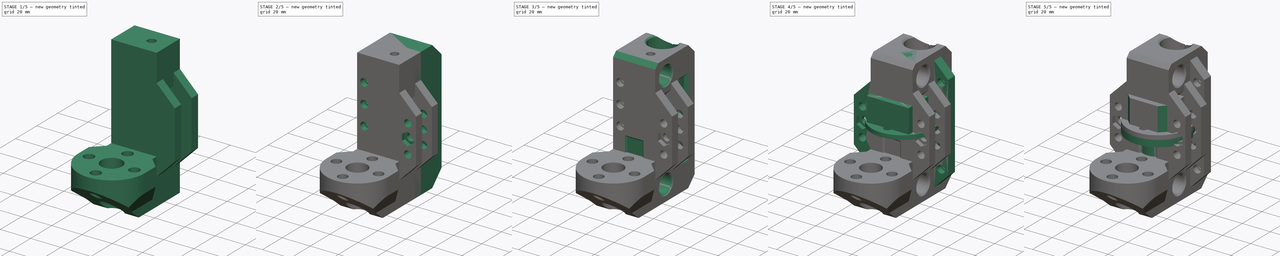
[diagram: build sequence overview — one tinted view per stage of 5, left to right]
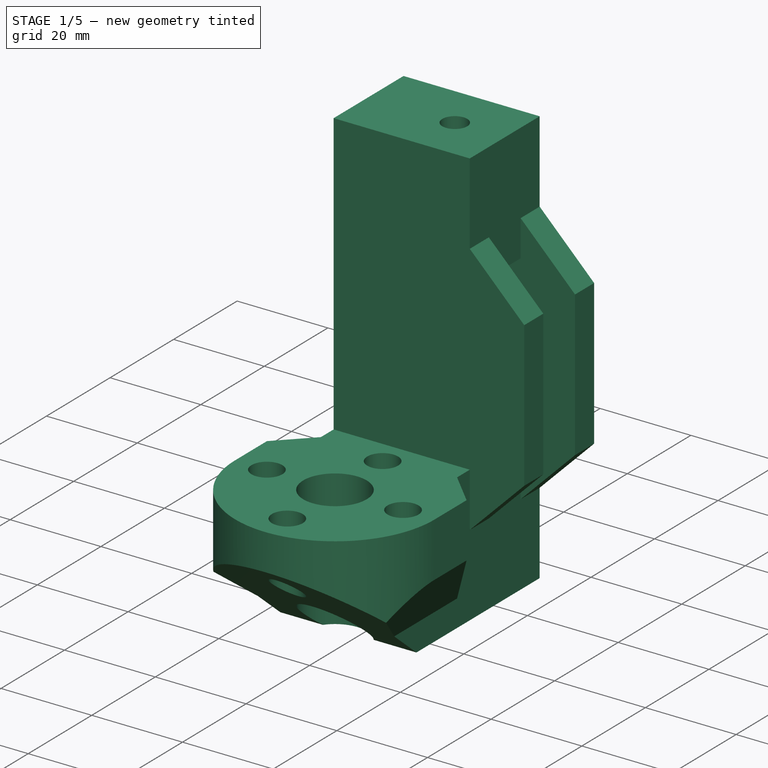
[diagram: stage 1 of 5 — iso view after this stage's code; geometry added in this stage tinted green]
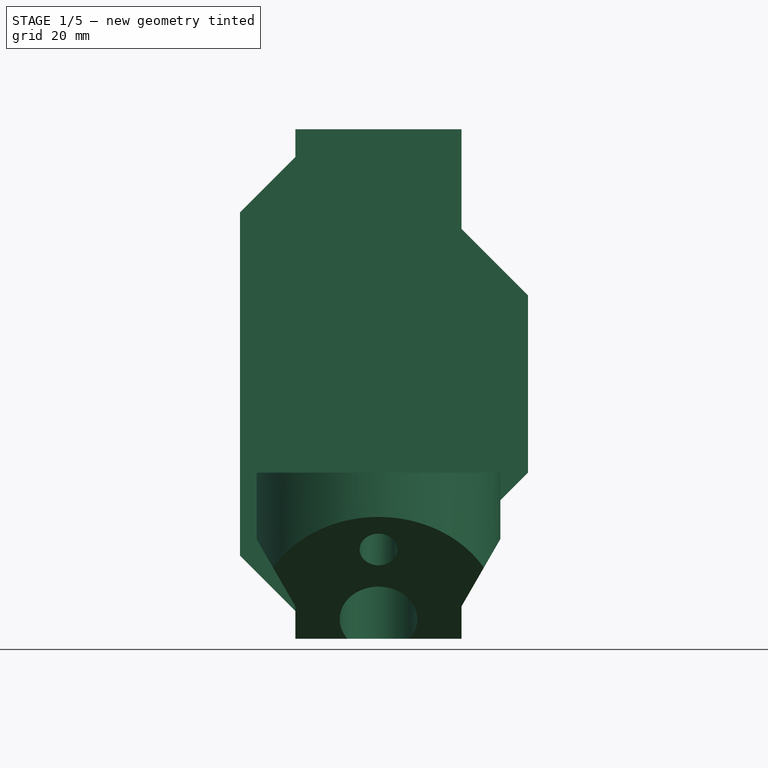
[diagram: stage 1 of 5 — front view after this stage's code; geometry added in this stage tinted green]
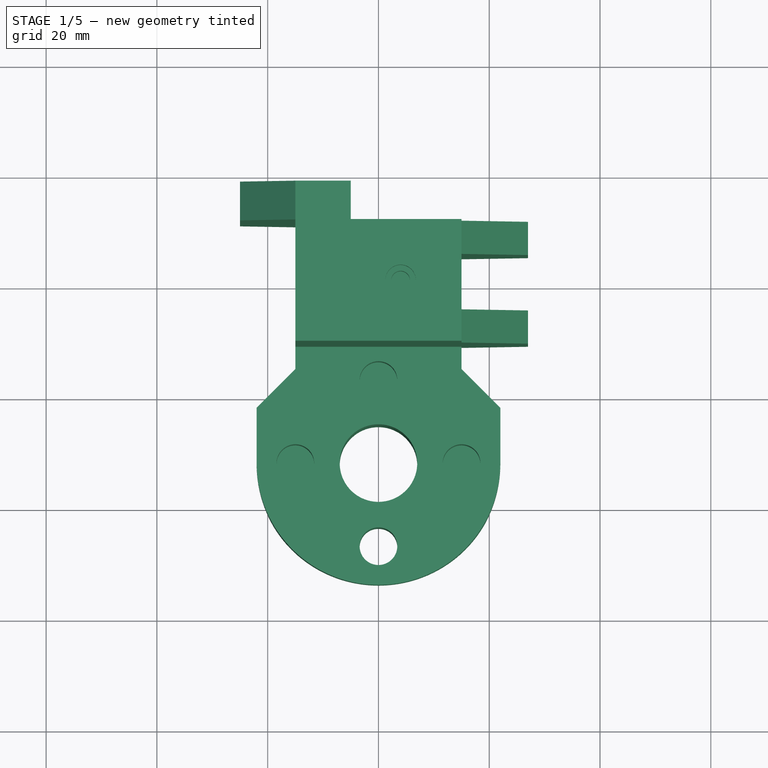
[diagram: stage 1 of 5 — top view after this stage's code; geometry added in this stage tinted green]
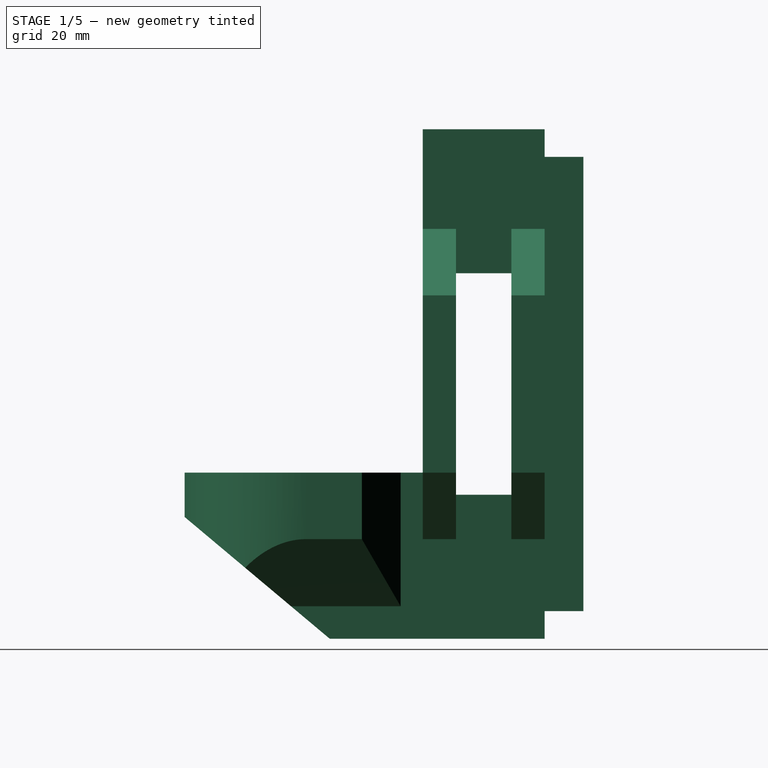
[diagram: stage 1 of 5 — right view after this stage's code; geometry added in this stage tinted green]
FCSTD DOCUMENT  (FreeCAD 1.0R39319 (Git))
Label: TAZ6-z-axis-v0.4
License: All rights reserved
LicenseURL: https://en.wikipedia.org/wiki/All_rights_reserved
objects: Sketcher::SketchObject×47, PartDesign::Pocket×27, PartDesign::Body×16, PartDesign::Pad×11, App::Part×10, PartDesign::Chamfer×7, PartDesign::SubShapeBinder×6, PartDesign::Hole×6, PartDesign::FeatureBase×6, App::DocumentObjectGroup×3, PartDesign::Revolution×2, PartDesign::Draft×2, Spreadsheet::Sheet×1, PartDesign::Boolean×1, Part::Mirroring×1
note: 296 computed .brp shape members not serialized (recipe doc carries the construction recipe); baked Part::Feature solids carry a one-line shape summary decoded from their .brp

FEATURE [Sketcher::SketchObject] Sketch  label="Z Top Profile"
  ArcFitTolerance = 1e-06
  AttachmentSupport = -> [XY_Plane]
  FullyConstrained = true
  MakeInternals = false
  MapMode = 5
  sketch-geometry (3):
    g0: Circle CenterX=0 CenterY=18 CenterZ=0 NormalX=0 NormalY=0 NormalZ=1 AngleXU=0 Radius=5
    g1: Circle CenterX=0 CenterY=-32 CenterZ=0 NormalX=0 NormalY=0 NormalZ=1 AngleXU=0 Radius=6
    g2: Circle CenterX=0 CenterY=-32 CenterZ=0 NormalX=0 NormalY=0 NormalZ=1 AngleXU=0 Radius=22
  constraints (8):
    c: Diameter(g0) = 10
    c: PointOnObject(g0,g-2)
    c: Diameter(g1) = 12
    c: PointOnObject(g1,g-2)
    c: Coincident(g2,g1)
    c: Diameter(g2) = 44
    c: DistanceY(g1,g0) = 50
    c: DistanceY(g-1,g0) = 18
FEATURE [Sketcher::SketchObject] Sketch001  label="Z Front Profile"
  ArcFitTolerance = 1e-06
  FullyConstrained = false
  MakeInternals = false
  Placement = pos=(0,0,0) rot=(0.57735,0.57735,0.57735;2.0944rad)
  sketch-geometry (2):
    g0: Circle CenterX=0 CenterY=35 CenterZ=0 NormalX=0 NormalY=0 NormalZ=1 AngleXU=0 Radius=5.20377
    g1: Circle CenterX=0 CenterY=-35 CenterZ=0 NormalX=0 NormalY=0 NormalZ=1 AngleXU=0 Radius=4.92223
  constraints (3):
    c: PointOnObject(g0,g-2)
    c: Symmetric(g0,g1,g-1)
    c: DistanceY(g1,g0) = 70
FEATURE [PartDesign::SubShapeBinder] Binder  label="TopProfileBinder"
  BindCopyOnChange = 0
  BindMode = 0
  ClaimChildren = false
  Context = -> Part [Body.Binder.]
  Fuse = false
  MakeFace = true
  OffsetFill = false
  OffsetIntersection = false
  OffsetJoinType = 0
  OffsetOpenResult = false
  PartialLoad = false
  Refine = true
  Relative = true
  Support = -> [Sketch]
  _Version = 2
FEATURE [PartDesign::SubShapeBinder] Binder001  label="FrontProfileBinder"
  BindCopyOnChange = 0
  BindMode = 0
  ClaimChildren = false
  Context = -> Part [Body.Binder001.]
  Fuse = false
  MakeFace = true
  OffsetFill = false
  OffsetIntersection = false
  OffsetJoinType = 0
  OffsetOpenResult = false
  PartialLoad = false
  Refine = true
  Relative = true
  Support = -> [Sketch001]
  _Version = 2
FEATURE [Sketcher::SketchObject] Sketch002  label="BaseBlockTop"
  ArcFitTolerance = 1e-06
  AttachmentSupport = -> [XY_Plane]
  ExternalGeometry = -> [Binder]
  FullyConstrained = true
  MakeInternals = false
  MapMode = 5
  sketch-geometry (11):
    g0: LineSegment StartX=15 StartY=36 StartZ=0 EndX=-15 EndY=36 EndZ=0
    g1: LineSegment StartX=-22 StartY=-55 StartZ=0 EndX=22 EndY=-55 EndZ=0
    g2: LineSegment StartX=22 StartY=-55 StartZ=0 EndX=22 EndY=-9 EndZ=0
    g3: LineSegment StartX=22 StartY=-9 StartZ=0 EndX=15 EndY=-9 EndZ=0
    g4: LineSegment StartX=-22 StartY=-9 StartZ=0 EndX=-22 EndY=-55 EndZ=0
    g5: GeomPoint [constr] X=0 Y=-32 Z=0
    g6: LineSegment [constr] StartX=0 StartY=18 StartZ=0 EndX=0 EndY=36 EndZ=0
    g7: LineSegment StartX=15 StartY=36 StartZ=0 EndX=15 EndY=-9 EndZ=0
    g8: LineSegment StartX=-15 StartY=36 StartZ=0 EndX=-15 EndY=-9 EndZ=0
    g9: LineSegment StartX=-15 StartY=-9 StartZ=0 EndX=-22 EndY=-9 EndZ=0
    g10: LineSegment [constr] StartX=-15 StartY=-9 StartZ=0 EndX=15 EndY=-9 EndZ=0
  constraints (29):
    c: Horizontal(g0)
    c: DistanceX(g0,g0) = 30
    c: Coincident(g1,g2)
    c: Coincident(g2,g3)
    c: Coincident(g9,g4)
    c: Coincident(g4,g1)
    c: Horizontal(g1)
    c: Vertical(g2)
    c: Vertical(g4)
    c: Symmetric(g3,g1,g5)
    c: Distance(g2,g4) = 44
    c: Distance(g1,g9) = 46
    c: Coincident(g5,g-3)
    c: DistanceY(g1,g0) = 91
    c: Coincident(g6,g-4)
    c: Symmetric(g0,g0,g6)
    c: Vertical(g6)
    c: Coincident(g7,g0)
    c: Vertical(g7)
    c: Coincident(g8,g0)
    c: PointOnObject(g8,g9)
    c: Vertical(g8)
    c: Coincident(g3,g7)
    c: PointOnObject(g9,g8)
    c: Coincident(g10,g8)
    c: Coincident(g10,g3)
    c: Horizontal(g10)
    c: Horizontal(g9)
    c: Horizontal(g3)
FEATURE [Sketcher::SketchObject] Sketch003  label="BaseBlockFront"
  ArcFitTolerance = 1e-06
  AttachmentSupport = -> [YZ_Plane]
  FullyConstrained = true
  MakeInternals = false
  MapMode = 5
  Placement = pos=(0,0,0) rot=(0.57735,0.57735,0.57735;2.0944rad)
  sketch-geometry (5):
    g0: LineSegment StartX=11 StartY=46 StartZ=0 EndX=-11 EndY=46 EndZ=0
    g1: LineSegment StartX=-11 StartY=46 StartZ=0 EndX=-11 EndY=-46 EndZ=0
    g2: LineSegment StartX=-11 StartY=-46 StartZ=0 EndX=11 EndY=-46 EndZ=0
    g3: LineSegment StartX=11 StartY=-46 StartZ=0 EndX=11 EndY=46 EndZ=0
    g4: GeomPoint [constr] X=0 Y=0 Z=0
  constraints (12):
    c: Coincident(g0,g1)
    c: Coincident(g1,g2)
    c: Coincident(g2,g3)
    c: Coincident(g3,g0)
    c: Horizontal(g0)
    c: Horizontal(g2)
    c: Vertical(g1)
    c: Vertical(g3)
    c: Symmetric(g2,g0,g4)
    c: Coincident(g4,g-1)
    c: DistanceY(g3,g3) = 92
    c: DistanceX(g0,g0) = 22
FEATURE [PartDesign::Pad] Pad
  Direction = (1,0,0)
  Length = 30
  Length2 = 10
  Midplane = true
  Placement = pos=(0,0,0) rot=(1,1,1;2.0944rad)
  Profile = -> Sketch003
  ReferenceAxis = -> Sketch003 [N_Axis]
  Refine = true
  Suppressed = false
  Type = 0
FEATURE [PartDesign::Body] Body003
  AllowCompound = false
  Group = -> [Sketch014,Pad011,Sketch015,Pad012]
  Origin = -> Origin006
  Tip = -> Pad012
FEATURE [App::Part] Part002  label="LeadScrewNut"
  Group = -> [Body003]
  Origin = -> Origin005
  Placement = pos=(0,-32,-16) rot=(1,0,0;3.14159rad)
FEATURE [App::DocumentObjectGroup] Group  label="Base Sketches"
  Group = -> [Sketch001,Sketch]
FEATURE [PartDesign::Pad] Pad013  label="PulleysBlockPad"
  BaseFeature = -> Pad
  Direction = (0,-1,0)
  Length = 22
  Length2 = 10
  Midplane = true
  Placement = pos=(0,0,0) rot=(1,1,1;2.0944rad)
  Profile = -> Sketch011
  ReferenceAxis = -> Sketch011 [N_Axis]
  Refine = true
  Suppressed = false
  Type = 0
FEATURE [PartDesign::Pocket] Pocket  label="PulleyCutOut"
  BaseFeature = -> Pad013
  Direction = (0,1,0)
  Length = 10
  Length2 = 5
  Midplane = true
  Placement = pos=(0,0,0) rot=(1,1,1;2.0944rad)
  Profile = -> Sketch011
  ReferenceAxis = -> Sketch011 [N_Axis]
  Refine = true
  Suppressed = false
  Type = 0
FEATURE [Sketcher::SketchObject] Sketch016  label="BeltsPathSketch"
  ArcFitTolerance = 1e-06
  AttachmentSupport = -> [Pocket]
  FullyConstrained = true
  MakeInternals = false
  MapMode = 5
  Placement = pos=(0,5,0) rot=(0.57735,0.57735,-0.57735;2.0944rad)
  sketch-geometry (4):
    g0: LineSegment StartX=20 StartY=15 StartZ=0 EndX=-20 EndY=15 EndZ=0
    g1: LineSegment StartX=-20 StartY=15 StartZ=0 EndX=-20 EndY=-15 EndZ=0
    g2: LineSegment StartX=-20 StartY=-15 StartZ=0 EndX=20 EndY=-15 EndZ=0
    g3: LineSegment StartX=20 StartY=-15 StartZ=0 EndX=20 EndY=15 EndZ=0
  constraints (11):
    c: Coincident(g0,g1)
    c: Coincident(g1,g2)
    c: Coincident(g2,g3)
    c: Coincident(g3,g0)
    c: Horizontal(g0)
    c: Vertical(g1)
    c: Vertical(g3)
    c: PointOnObject(g0,g-3)
    c: Tangent(g2,g-4) = -1.5708
    c: Symmetric(g1,g2,g-2)
    c: DistanceX(g2,g2) = 40
FEATURE [Sketcher::SketchObject] Sketch017
  ArcFitTolerance = 1e-06
  AttachmentSupport = -> [XZ_Plane]
  FullyConstrained = true
  MakeInternals = false
  MapMode = 5
  Placement = pos=(0,0,0) rot=(1,0,0;1.5708rad)
  sketch-geometry (7):
    g0: LineSegment [constr] StartX=-15 StartY=41 StartZ=0 EndX=-15 EndY=-41 EndZ=0
    g1: LineSegment StartX=-15 StartY=-41 StartZ=0 EndX=-25 EndY=-31 EndZ=0
    g2: LineSegment StartX=-25 StartY=-31 StartZ=0 EndX=-25 EndY=31 EndZ=0
    g3: LineSegment StartX=-25 StartY=31 StartZ=0 EndX=-15 EndY=41 EndZ=0
    g4: LineSegment StartX=-15 StartY=41 StartZ=0 EndX=-5 EndY=41 EndZ=0
    g5: LineSegment StartX=-5 StartY=41 StartZ=0 EndX=-5 EndY=-41 EndZ=0
    g6: LineSegment StartX=-5 StartY=-41 StartZ=0 EndX=-15 EndY=-41 EndZ=0
  constraints (18):
    c: PointOnObject(g0,g-3)
    c: Coincident(g0,g1)
    c: Coincident(g1,g2)
    c: Coincident(g2,g3)
    c: Coincident(g3,g0)
    c: DistanceX(g2,g0) = 10
    c: DistanceY(g1,g2) = 62
    c: Symmetric(g0,g0,g-1)
    c: Symmetric(g1,g2,g-1)
    c: Angle(g3,g0) = 0.785398
    c: Coincident(g0,g4)
    c: Horizontal(g4)
    c: Coincident(g4,g5)
    c: Vertical(g5)
    c: Coincident(g5,g6)
    c: Coincident(g6,g0)
    c: Horizontal(g6)
    c: DistanceX(g6,g6) = 10
FEATURE [PartDesign::Pad] Pad014  label="MotorMountsBlock"
  BaseFeature = -> Pocket
  Direction = (0,-1,2e-16)
  Length = 18
  Length2 = -11
  Placement = pos=(0,0,0) rot=(1,1,1;2.0944rad)
  Profile = -> Sketch017
  ReferenceAxis = -> Sketch017 [N_Axis]
  Refine = true
  Reversed = true
  Suppressed = false
  Type = 4
FEATURE [PartDesign::Pocket] Pocket007  label="BeltCutOut"
  BaseFeature = -> Pad014
  Direction = (0,1,0)
  Length = 10
  Length2 = 5
  Placement = pos=(0,0,0) rot=(1,1,1;2.0944rad)
  Profile = -> Sketch016
  ReferenceAxis = -> Sketch016 [N_Axis]
  Refine = true
  Reversed = true
  Suppressed = false
  Type = 0
FEATURE [PartDesign::SubShapeBinder] Binder002
  BindCopyOnChange = 0
  BindMode = 0
  ClaimChildren = false
  Context = -> Part [Body005.Binder002.]
  Fuse = false
  MakeFace = true
  OffsetFill = false
  OffsetIntersection = false
  OffsetJoinType = 0
  OffsetOpenResult = false
  PartialLoad = false
  Refine = true
  Relative = true
  Support = -> [Sketch]
  _Version = 2
FEATURE [Sketcher::SketchObject] Sketch022  label="TopProfileSketch"
  ArcFitTolerance = 1e-06
  AttachmentOffset = pos=(0,0,-16) rot=(0,0,1;0rad)
  AttachmentSupport = -> [XY_Plane008]
  ExternalGeometry = -> [Binder002]
  FullyConstrained = true
  MakeInternals = false
  MapMode = 5
  Placement = pos=(0,0,-16) rot=(0,0,1;0rad)
  sketch-geometry (17):
    g0: LineSegment [constr] StartX=-22 StartY=-54 StartZ=0 EndX=22 EndY=-54 EndZ=0
    g1: LineSegment [constr] StartX=-22 StartY=-54 StartZ=0 EndX=22 EndY=-10 EndZ=0
    g2: LineSegment [constr] StartX=22 StartY=-22 StartZ=0 EndX=22 EndY=-10 EndZ=0
    g3: LineSegment [constr] StartX=22 StartY=-10 StartZ=0 EndX=15 EndY=-10 EndZ=0
    g4: LineSegment StartX=22 StartY=-22 StartZ=0 EndX=15 EndY=-15 EndZ=0
    g5: LineSegment StartX=15 StartY=-15 StartZ=0 EndX=15 EndY=-10 EndZ=0
    g6: LineSegment [constr] StartX=-22 StartY=-32 StartZ=0 EndX=-22 EndY=-54 EndZ=0
    g7: LineSegment [constr] StartX=22 StartY=-54 StartZ=0 EndX=22 EndY=-32 EndZ=0
    g8: LineSegment StartX=22 StartY=-32 StartZ=0 EndX=22 EndY=-22 EndZ=0
    g9: LineSegment [constr] StartX=-22 StartY=-32 StartZ=0 EndX=22 EndY=-32 EndZ=0
    g10: ArcOfCircle CenterX=0 CenterY=-32 CenterZ=0 NormalX=0 NormalY=0 NormalZ=1 AngleXU=0 Radius=22 StartAngle=3.14159 EndAngle=6.28319
    g11: LineSegment [constr] StartX=-22 StartY=-10 StartZ=0 EndX=-22 EndY=-22 EndZ=0
    g12: LineSegment StartX=-22 StartY=-22 StartZ=0 EndX=-22 EndY=-32 EndZ=0
    g13: LineSegment StartX=-22 StartY=-22 StartZ=0 EndX=-15 EndY=-15 EndZ=0
    g14: LineSegment StartX=15 StartY=-10 StartZ=0 EndX=-15 EndY=-10 EndZ=0
    g15: LineSegment [constr] StartX=-15 StartY=-10 StartZ=0 EndX=-22 EndY=-10 EndZ=0
    g16: LineSegment StartX=-15 StartY=-10 StartZ=0 EndX=-15 EndY=-15 EndZ=0
  constraints (43):
    c: Coincident(g15,g11)
    c: Coincident(g6,g0)
    c: Coincident(g0,g7)
    c: Coincident(g2,g3)
    c: Horizontal(g0)
    c: Coincident(g1,g6)
    c: Coincident(g1,g3)
    c: Symmetric(g1,g1,g-3)
    c: DistanceY(g7,g2) = 44
    c: Coincident(g8,g2)
    c: Vertical(g2)
    c: Coincident(g4,g8)
    c: Coincident(g3,g14)
    c: Horizontal(g3)
    c: Coincident(g5,g3)
    c: DistanceX(g0,g0) = 44
    c: Coincident(g4,g5)
    c: Vertical(g5)
    c: DistanceX(g-3,g4) = 15
    c: DistanceY(g5,g5) = 5
    c: Coincident(g12,g6)
    c: Vertical(g6)
    c: Coincident(g7,g8)
    c: Vertical(g7)
    c: Coincident(g9,g12)
    c: Horizontal(g9)
    c: Coincident(g7,g9)
    c: Symmetric(g9,g9,g-3)
    c: Coincident(g10,g-3)
    c: Coincident(g10,g12)
    c: Coincident(g10,g7)
    c: Angle(g4,g8) = 2.35619
    c: Coincident(g11,g12)
    c: Vertical(g11)
    c: Symmetric(g11,g2,g-2)
    c: Coincident(g13,g11)
    c: Coincident(g14,g15)
    c: Horizontal(g14)
    c: Horizontal(g15)
    c: Coincident(g16,g14)
    c: Coincident(g16,g13)
    c: Vertical(g16)
    c: Symmetric(g13,g4,g-2)
FEATURE [PartDesign::Pad] Pad016  label="TopBlockExtrusion"
  Direction = (0,0,1)
  Length = 30
  Length2 = 10
  Profile = -> Sketch022
  ReferenceAxis = -> Sketch022 [N_Axis]
  Refine = true
  Reversed = true
  Suppressed = false
  Type = 0
FEATURE [Sketcher::SketchObject] Sketch023  label="SideProfileSketch"
  ArcFitTolerance = 1e-06
  AttachmentSupport = -> [Pad016]
  ExternalGeometry = -> [Pad016]
  FullyConstrained = true
  MakeInternals = false
  MapMode = 5
  Placement = pos=(22,-1.56e-14,0) rot=(0.57735,0.57735,0.57735;2.0944rad)
  sketch-geometry (5):
    g0: LineSegment [constr] StartX=-54 StartY=-16 StartZ=0 EndX=-54 EndY=-24 EndZ=0
    g1: LineSegment StartX=-54 StartY=-24 StartZ=0 EndX=-27.7814 EndY=-46 EndZ=0
    g2: LineSegment StartX=-27.7814 StartY=-46 StartZ=0 EndX=-54 EndY=-46 EndZ=0
    g3: LineSegment StartX=-54 StartY=-46 StartZ=0 EndX=-54 EndY=-24 EndZ=0
    g4: LineSegment [constr] StartX=-27.7814 StartY=-46 StartZ=0 EndX=-15 EndY=-46 EndZ=0
  constraints (12):
    c: Coincident(g-4,g0)
    c: Vertical(g0)
    c: Coincident(g0,g1)
    c: DistanceY(g0,g0) = 8
    c: Coincident(g2,g-3)
    c: Coincident(g3,g2)
    c: Coincident(g3,g0)
    c: Angle(g1,g2) = 0.698132
    c: Coincident(g2,g1)
    c: Coincident(g4,g1)
    c: Coincident(g4,g-5)
    c: Horizontal(g4)
FEATURE [PartDesign::Pocket] Pocket009  label="SideProfilePocket"
  BaseFeature = -> Pad016
  Direction = (-1,0,0)
  Length = 44
  Length2 = 5
  Profile = -> Sketch023
  ReferenceAxis = -> Sketch023 [N_Axis]
  Refine = true
  Suppressed = false
  Type = 0
FEATURE [Sketcher::SketchObject] Sketch024
  ArcFitTolerance = 1e-06
  AttachmentSupport = -> [Pocket009]
  ExternalGeometry = -> [Binder002]
  FullyConstrained = true
  MakeInternals = false
  MapMode = 5
  Placement = pos=(0,0,-16) rot=(0,0,1;0rad)
  sketch-geometry (1):
    g0: Circle CenterX=0 CenterY=-32 CenterZ=0 NormalX=0 NormalY=0 NormalZ=1 AngleXU=0 Radius=7
  constraints (2):
    c: Coincident(g0,g-3)
    c: Diameter(g0) = 14
FEATURE [PartDesign::Pocket] Pocket010
  BaseFeature = -> Pocket009
  Direction = (0,0,-1)
  Length = 0
  Length2 = 5
  Profile = -> Sketch024
  ReferenceAxis = -> Sketch024 [N_Axis]
  Refine = true
  Suppressed = false
  Type = 3
  UpToFace = -> Pocket009 [Face5]
FEATURE [Sketcher::SketchObject] Sketch025
  ArcFitTolerance = 1e-06
  AttachmentSupport = -> [XZ_Plane008]
  ExternalGeometry = -> [Pocket010]
  FullyConstrained = true
  MakeInternals = false
  MapMode = 5
  Placement = pos=(0,0,0) rot=(1,0,0;1.5708rad)
  sketch-geometry (8):
    g0: LineSegment StartX=15 StartY=-46 StartZ=0 EndX=15 EndY=-40.1244 EndZ=0
    g1: LineSegment StartX=15 StartY=-40.1244 StartZ=0 EndX=22 EndY=-28 EndZ=0
    g2: LineSegment StartX=22 StartY=-28 StartZ=0 EndX=22 EndY=-46 EndZ=0
    g3: LineSegment StartX=22 StartY=-46 StartZ=0 EndX=15 EndY=-46 EndZ=0
    g4: LineSegment StartX=-15 StartY=-40.1244 StartZ=0 EndX=-22 EndY=-28 EndZ=0
    g5: LineSegment StartX=-22 StartY=-28 StartZ=0 EndX=-22 EndY=-46 EndZ=0
    g6: LineSegment StartX=-22 StartY=-46 StartZ=0 EndX=-15 EndY=-46 EndZ=0
    g7: LineSegment StartX=-15 StartY=-46 StartZ=0 EndX=-15 EndY=-40.1244 EndZ=0
  constraints (20):
    c: Coincident(g-3,g0)
    c: PointOnObject(g0,g-3)
    c: Coincident(g0,g1)
    c: Coincident(g1,g2)
    c: Vertical(g2)
    c: Coincident(g2,g3)
    c: Coincident(g3,g0)
    c: Horizontal(g3)
    c: PointOnObject(g1,g-4)
    c: Coincident(g4,g5)
    c: Vertical(g5)
    c: Coincident(g5,g6)
    c: Coincident(g6,g7)
    c: Coincident(g7,g4)
    c: Horizontal(g6)
    c: Symmetric(g4,g1,g-2)
    c: Symmetric(g0,g4,g-2)
    c: Angle(g1,g2) = 0.523599
    c: DistanceY(g1,g-4) = 12
    c: Symmetric(g0,g6,g-2)
FEATURE [PartDesign::Pocket] Pocket011
  BaseFeature = -> Pocket010
  Direction = (0,1,-2e-16)
  Length = 50
  Length2 = 5
  Profile = -> Sketch025
  ReferenceAxis = -> Sketch025 [N_Axis]
  Refine = true
  Reversed = true
  Suppressed = false
  Type = 0
FEATURE [PartDesign::Body] Body008  label="BearingBodyClone"
  AllowCompound = false
  Group = -> [Clone002]
  Origin = -> Origin011
  Tip = -> Clone002
FEATURE [Sketcher::SketchObject] Sketch031
  ArcFitTolerance = 1e-06
  AttachmentSupport = -> [Pocket007]
  FullyConstrained = true
  MakeInternals = false
  MapMode = 5
  Placement = pos=(0,-1.01e-14,-46) rot=(0.707107,0.707107,0;3.14159rad)
  sketch-geometry (1):
    g0: Circle CenterX=0 CenterY=4 CenterZ=0 NormalX=0 NormalY=0 NormalZ=1 AngleXU=0 Radius=1.6
  constraints (3):
    c: PointOnObject(g0,g-2)
    c: Diameter(g0) = 3.2
    c: DistanceY(g-1,g0) = 4
FEATURE [PartDesign::Hole] Hole001  label="TopInset"
  BaseFeature = -> Pocket007
  CustomThreadClearance = 0
  Depth = 10
  DepthType = 0
  Diameter = 3.4
  DrillForDepth = false
  DrillPoint = 0
  DrillPointAngle = 118
  HoleCutCountersinkAngle = 90
  HoleCutCustomValues = false
  HoleCutDepth = 4
  HoleCutDiameter = 5.5
  HoleCutType = 1
  ModelThread = false
  Placement = pos=(0,0,0) rot=(1,1,1;2.0944rad)
  Profile = -> Sketch031
  Refine = true
  Suppressed = false
  Tapered = false
  TaperedAngle = 90
  ThreadClass = 0
  ThreadDepth = 10
  ThreadDepthType = 0
  ThreadDirection = 0
  ThreadFit = 0
  ThreadSize = 9
  ThreadType = 1
  Threaded = false
  UseCustomThreadClearance = false
FEATURE [Sketcher::SketchObject] Sketch032
  ArcFitTolerance = 1e-06
  AttachmentSupport = -> [Hole001]
  ExternalGeometry = -> [Hole001]
  FullyConstrained = true
  MakeInternals = false
  MapMode = 5
  Placement = pos=(0,1.01e-14,46) rot=(0,0,-1;1.5708rad)
  sketch-geometry (1):
    g0: Circle CenterX=0 CenterY=4 CenterZ=0 NormalX=0 NormalY=0 NormalZ=1 AngleXU=0 Radius=2.75
  constraints (2):
    c: Coincident(g0,g-3)
    c: Equal(g0,g-3)
FEATURE [PartDesign::Hole] Hole002  label="BottomInset"
  BaseFeature = -> Hole001
  CustomThreadClearance = 0
  Depth = 10
  DepthType = 0
  Diameter = 3.4
  DrillForDepth = false
  DrillPoint = 0
  DrillPointAngle = 118
  HoleCutCountersinkAngle = 90
  HoleCutCustomValues = false
  HoleCutDepth = 4
  HoleCutDiameter = 5.5
  HoleCutType = 1
  ModelThread = false
  Placement = pos=(0,0,0) rot=(1,1,1;2.0944rad)
  Profile = -> Sketch032
  Refine = true
  Suppressed = false
  Tapered = false
  TaperedAngle = 90
  ThreadClass = 0
  ThreadDepth = 10
  ThreadDepthType = 0
  ThreadDirection = 0
  ThreadFit = 0
  ThreadSize = 9
  ThreadType = 1
  Threaded = false
  UseCustomThreadClearance = false
FEATURE [PartDesign::Body] Body010  label="Calibration"
  AllowCompound = false
  Group = -> [Sketch040,Pad017,Sketch041,Pocket021,Sketch042,Sketch043,Pocket022,Pocket023,Sketch044,Pocket024,Chamfer003,Sketch045,Pocket025]
  Origin = -> Origin014
  Tip = -> Pocket025
FEATURE [App::Part] Part003  label="CalibrationCube"
  Group = -> [Body010]
  Origin = -> Origin013
FEATURE [PartDesign::Pocket] Pocket026
  BaseFeature = -> Pocket011
  Direction = (0,0,-1)
  Length = 12
  Length2 = 5
  Profile = -> Sketch026 [Edge3,Edge2,Edge1]
  ReferenceAxis = -> Sketch026 [N_Axis]
  Refine = true
  Suppressed = false
  Type = 0
FEATURE [PartDesign::Pocket] Pocket027
  BaseFeature = -> Pocket026
  Direction = (0,0,-1)
  Length = 18
  Length2 = 5
  Profile = -> Sketch026 [Edge4]
  ReferenceAxis = -> Sketch026 [N_Axis]
  Refine = true
  Suppressed = false
  Type = 0
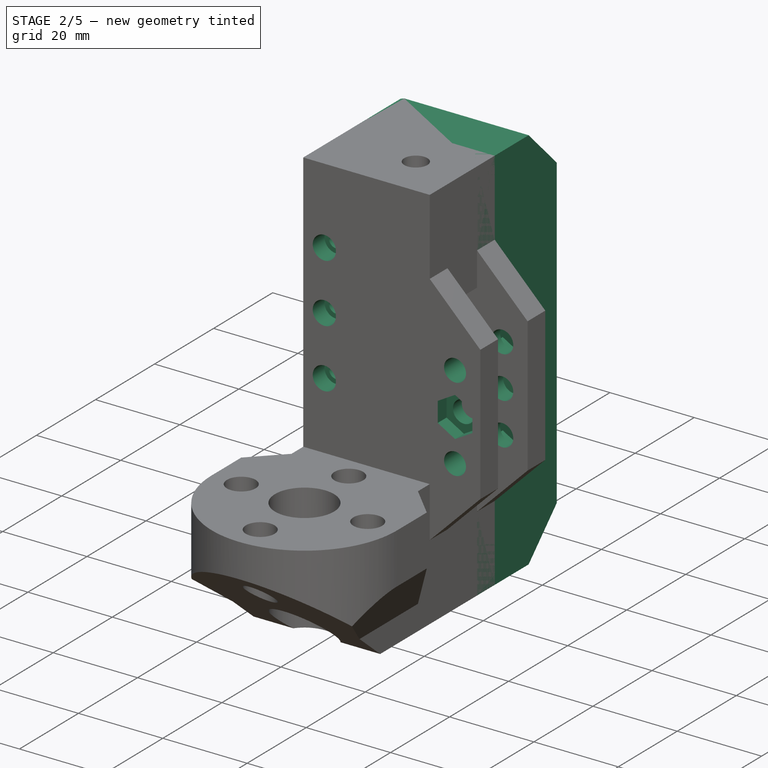
[diagram: stage 2 of 5 — iso view after this stage's code; geometry added in this stage tinted green]
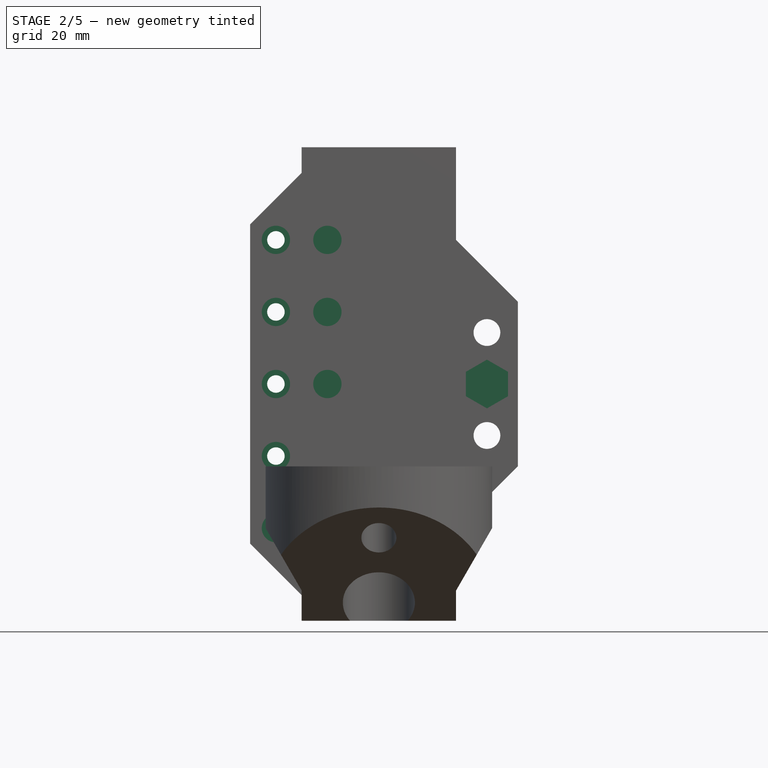
[diagram: stage 2 of 5 — front view after this stage's code; geometry added in this stage tinted green]
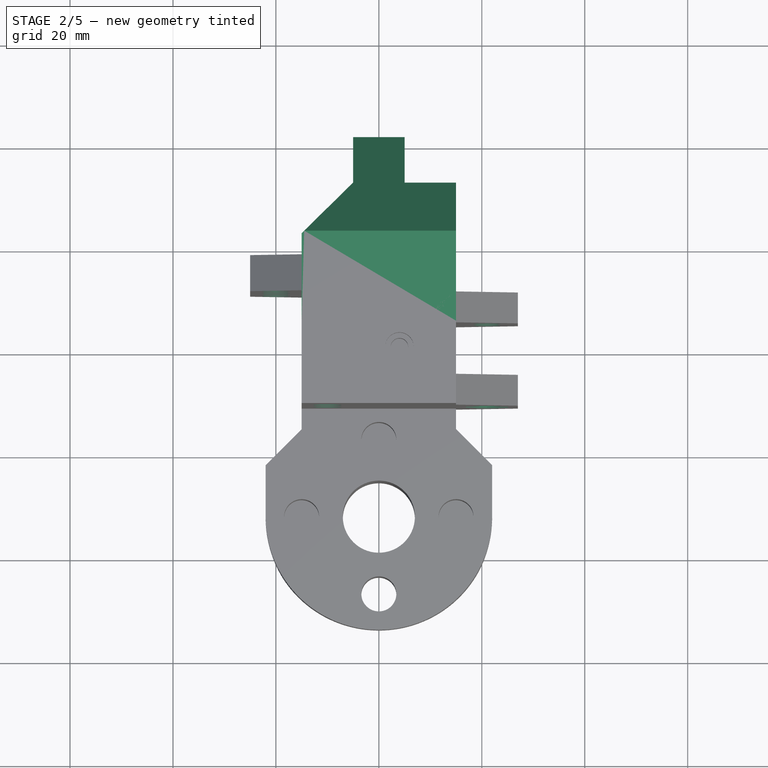
[diagram: stage 2 of 5 — top view after this stage's code; geometry added in this stage tinted green]
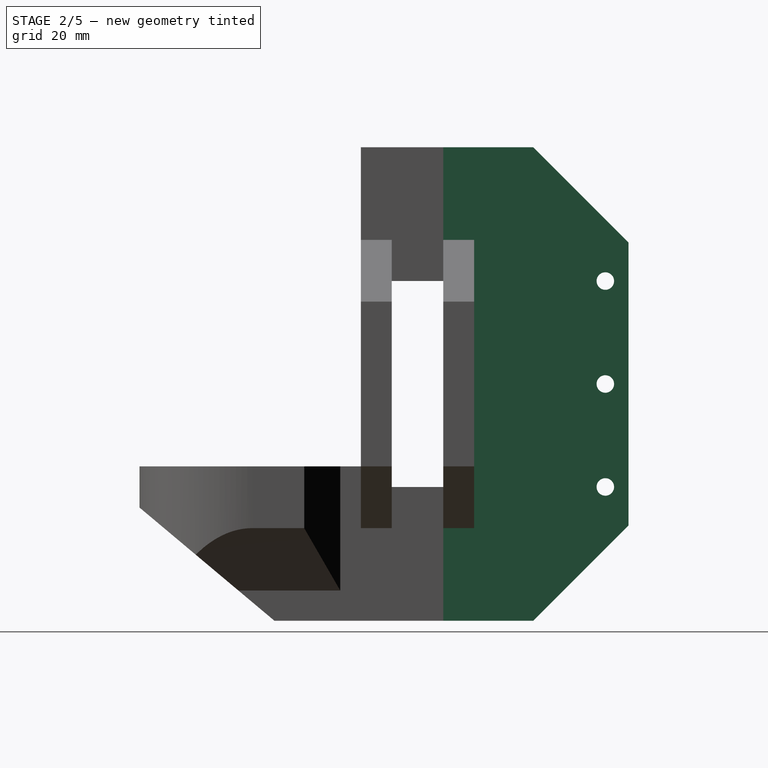
[diagram: stage 2 of 5 — right view after this stage's code; geometry added in this stage tinted green]
FEATURE [Sketcher::SketchObject] Sketch020
  ArcFitTolerance = 1e-06
  AttachmentSupport = -> [Binder]
  ExternalGeometry = -> [Binder]
  FullyConstrained = true
  MakeInternals = false
  MapMode = 5
  sketch-geometry (20):
    g0: LineSegment StartX=-15 StartY=22 StartZ=0 EndX=-15 EndY=5 EndZ=0
    g1: LineSegment StartX=-15 StartY=5 StartZ=0 EndX=15 EndY=5 EndZ=0
    g2: Circle [constr] CenterX=0 CenterY=18 CenterZ=0 NormalX=0 NormalY=0 NormalZ=1 AngleXU=0 Radius=9.6
    g3: LineSegment [constr] StartX=-5 StartY=13 StartZ=0 EndX=5 EndY=13 EndZ=0
    g4: LineSegment [constr] StartX=5 StartY=13 StartZ=0 EndX=5 EndY=23 EndZ=0
    g5: LineSegment [constr] StartX=5 StartY=23 StartZ=0 EndX=-5 EndY=23 EndZ=0
    g6: LineSegment [constr] StartX=-5 StartY=23 StartZ=0 EndX=-5 EndY=13 EndZ=0
    g7: GeomPoint [constr] X=0 Y=18 Z=0
    g8: LineSegment [constr] StartX=-29 StartY=32 StartZ=0 EndX=-9 EndY=32 EndZ=0
    g9: LineSegment [constr] StartX=-9 StartY=32 StartZ=0 EndX=-9 EndY=52 EndZ=0
    g10: LineSegment [constr] StartX=-9 StartY=52 StartZ=0 EndX=-29 EndY=52 EndZ=0
    g11: LineSegment [constr] StartX=-29 StartY=52 StartZ=0 EndX=-29 EndY=32 EndZ=0
    g12: LineSegment StartX=-15 StartY=22 StartZ=0 EndX=-5 EndY=32 EndZ=0
    g13: LineSegment StartX=-5 StartY=32 StartZ=0 EndX=-5 EndY=41 EndZ=0
    g14: LineSegment StartX=-5 StartY=41 StartZ=0 EndX=5 EndY=41 EndZ=0
    g15: LineSegment [constr] StartX=-9 StartY=32 StartZ=0 EndX=-5 EndY=32 EndZ=0
    g16: LineSegment StartX=5 StartY=32 StartZ=0 EndX=5 EndY=41 EndZ=0
    g17: LineSegment [constr] StartX=-5 StartY=32 StartZ=0 EndX=5 EndY=32 EndZ=0
    g18: LineSegment StartX=15 StartY=5 StartZ=0 EndX=15 EndY=32 EndZ=0
    g19: LineSegment StartX=15 StartY=32 StartZ=0 EndX=5 EndY=32 EndZ=0
  constraints (55):
    c: Coincident(g0,g1)
    c: Vertical(g0)
    c: Horizontal(g1)
    c: Diameter(g2) = 19.2
    c: Coincident(g3,g4)
    c: Coincident(g4,g5)
    c: Coincident(g5,g6)
    c: Coincident(g6,g3)
    c: Horizontal(g3)
    c: Horizontal(g5)
    c: Vertical(g4)
    c: Vertical(g6)
    c: Symmetric(g5,g3,g7)
    c: Distance(g4,g6) = 10
    c: Distance(g3,g5) = 10
    c: Coincident(g7,g-3)
    c: Coincident(g8,g9)
    c: Coincident(g9,g10)
    c: Coincident(g10,g11)
    c: Coincident(g11,g8)
    c: Horizontal(g8)
    c: Horizontal(g10)
    c: Vertical(g9)
    c: Vertical(g11)
    c: Distance(g9,g11) = 20
    c: Distance(g8,g10) = 20
    c: Coincident(g2,g7)
    c: DistanceX(g0,g3) = 10
    c: Coincident(g1,g18)
    c: DistanceY(g1,g2) = 13
    c: DistanceX(g0,g1) = 30
    c: DistanceY(g5,g8) = 9
    c: Coincident(g12,g0)
    c: Vertical(g13)
    c: Coincident(g14,g13)
    c: Horizontal(g14)
    c: DistanceY(g13,g13) = 9
    c: DistanceX(g14,g14) = 10
    c: DistanceY(g0,g13) = 10
    c: Coincident(g14,g16)
    c: Coincident(g15,g8)
    c: Horizontal(g15)
    c: Coincident(g19,g16)
    c: Vertical(g16)
    c: Coincident(g17,g19)
    c: Horizontal(g17)
    c: Coincident(g18,g19)
    c: Vertical(g18)
    c: Horizontal(g19)
    c: DistanceX(g8,g-1) = 9
    c: Coincident(g13,g12)
    c: DistanceX(g16,g18) = 10
    c: Coincident(g15,g12)
    c: Coincident(g17,g12)
    c: DistanceY(g18,g18) = 27
FEATURE [PartDesign::Pad] Pad015
  Direction = (0,0,1)
  Length = 92
  Length2 = 10
  Midplane = true
  Profile = -> Sketch020
  ReferenceAxis = -> Sketch020 [N_Axis]
  Refine = true
  Suppressed = false
  Type = 0
FEATURE [Sketcher::SketchObject] Sketch021
  ArcFitTolerance = 1e-06
  AttachmentSupport = -> [Pad015]
  ExternalGeometry = -> [Pad015]
  FullyConstrained = true
  MakeInternals = false
  MapMode = 5
  Placement = pos=(15,0,0) rot=(0.57735,0.57735,0.57735;2.0944rad)
  sketch-geometry (7):
    g0: LineSegment StartX=41 StartY=27.5 StartZ=0 EndX=22.5 EndY=46 EndZ=0
    g1: LineSegment StartX=41 StartY=-27.5 StartZ=0 EndX=22.5 EndY=-46 EndZ=0
    g2: LineSegment [constr] StartX=41 StartY=27.5 StartZ=0 EndX=41 EndY=-27.5 EndZ=0
    g3: LineSegment StartX=22.5 StartY=46 StartZ=0 EndX=41 EndY=46 EndZ=0
    g4: LineSegment StartX=41 StartY=-46 StartZ=0 EndX=22.5 EndY=-46 EndZ=0
    g5: LineSegment StartX=41 StartY=27.5 StartZ=0 EndX=41 EndY=46 EndZ=0
    g6: LineSegment StartX=41 StartY=-27.5 StartZ=0 EndX=41 EndY=-46 EndZ=0
  constraints (18):
    c: DistanceY(g1,g0) = 55
    c: Coincident(g2,g0)
    c: Coincident(g2,g1)
    c: Symmetric(g1,g0,g-1)
    c: Coincident(g3,g0)
    c: Horizontal(g3)
    c: Coincident(g4,g1)
    c: Horizontal(g4)
    c: Angle(g0,g3) = 0.785398
    c: Symmetric(g1,g0,g-1)
    c: PointOnObject(g0,g-3)
    c: PointOnObject(g-3,g4)
    c: Coincident(g5,g0)
    c: Coincident(g5,g3)
    c: Vertical(g5)
    c: Coincident(g6,g1)
    c: Coincident(g6,g4)
    c: Vertical(g6)
FEATURE [PartDesign::Pocket] Pocket008
  BaseFeature = -> Pad015
  Direction = (-1,0,0)
  Length = 35
  Length2 = 5
  Profile = -> Sketch021
  ReferenceAxis = -> Sketch021 [N_Axis]
  Refine = true
  Suppressed = false
  Type = 0
FEATURE [App::DocumentObjectGroup] Measurements
FEATURE [Sketcher::SketchObject] Sketch026  label="TopInsetHoles"
  ArcFitTolerance = 1e-06
  AttachmentSupport = -> [Pocket011]
  ExternalGeometry = -> [Pocket011]
  FullyConstrained = true
  MakeInternals = false
  MapMode = 5
  Placement = pos=(0,0,-16) rot=(0,0,1;0rad)
  expr: Constraints[3] = <<Dimensions>>.M5HeatSet
  sketch-geometry (7):
    g0: Circle CenterX=-15 CenterY=-32 CenterZ=0 NormalX=0 NormalY=0 NormalZ=1 AngleXU=0 Radius=3.4
    g1: Circle CenterX=15 CenterY=-32 CenterZ=0 NormalX=0 NormalY=0 NormalZ=1 AngleXU=0 Radius=3.4
    g2: Circle [constr] CenterX=0 CenterY=-32 CenterZ=0 NormalX=0 NormalY=0 NormalZ=1 AngleXU=0 Radius=15
    g3: LineSegment [constr] StartX=-15 StartY=-32 StartZ=0 EndX=15 EndY=-32 EndZ=0
    g4: Circle CenterX=0 CenterY=-17 CenterZ=0 NormalX=0 NormalY=0 NormalZ=1 AngleXU=0 Radius=3.4
    g5: Circle CenterX=0 CenterY=-47 CenterZ=0 NormalX=0 NormalY=0 NormalZ=1 AngleXU=0 Radius=3.4
    g6: LineSegment [constr] StartX=0 StartY=-17 StartZ=0 EndX=0 EndY=-47 EndZ=0
  constraints (16):
    c: Coincident(g2,g-3)
    c: PointOnObject(g0,g2)
    c: Diameter(g2) = 30
    c: Diameter(g0) = 6.8
    c: Coincident(g3,g0)
    c: Coincident(g3,g1)
    c: Horizontal(g3)
    c: Symmetric(g3,g3,g2)
    c: Equal(g0,g1)
    c: PointOnObject(g4,g2)
    c: Coincident(g6,g4)
    c: Coincident(g6,g5)
    c: Vertical(g6)
    c: Symmetric(g6,g6,g2)
    c: Equal(g5,g0)
    c: Equal(g4,g0)
FEATURE [PartDesign::SubShapeBinder] Binder003
  BindCopyOnChange = 0
  BindMode = 0
  ClaimChildren = false
  Context = -> Part [Body006.Binder003.]
  Fuse = false
  MakeFace = true
  OffsetFill = false
  OffsetIntersection = false
  OffsetJoinType = 0
  OffsetOpenResult = false
  PartialLoad = false
  Refine = true
  Relative = true
  Support = -> [Sketch009]
  _Version = 2
FEATURE [PartDesign::SubShapeBinder] Binder004
  BindCopyOnChange = 0
  BindMode = 0
  ClaimChildren = false
  Context = -> Part [Body006.Binder004.]
  Fuse = false
  MakeFace = true
  OffsetFill = false
  OffsetIntersection = false
  OffsetJoinType = 0
  OffsetOpenResult = false
  PartialLoad = false
  Refine = true
  Relative = true
  Support = -> [Sketch001]
  _Version = 2
FEATURE [Sketcher::SketchObject] Sketch029
  ArcFitTolerance = 1e-06
  AttachmentSupport = -> [Pocket008]
  ExternalGeometry = -> [Pocket008]
  FullyConstrained = true
  MakeInternals = false
  MapMode = 5
  Placement = pos=(5,0,0) rot=(0.57735,0.57735,0.57735;2.0944rad)
  expr: Constraints[0] = <<Dimensions>>.M3Hole
  sketch-geometry (5):
    g0: Circle CenterX=36.5 CenterY=20 CenterZ=0 NormalX=0 NormalY=0 NormalZ=1 AngleXU=0 Radius=1.7
    g1: Circle CenterX=36.5 CenterY=-20 CenterZ=0 NormalX=0 NormalY=0 NormalZ=1 AngleXU=0 Radius=1.7
    g2: LineSegment [constr] StartX=36.5 StartY=20 StartZ=0 EndX=36.5 EndY=-20 EndZ=0
    g3: Circle [constr] CenterX=36.5 CenterY=20 CenterZ=0 NormalX=0 NormalY=0 NormalZ=1 AngleXU=0 Radius=2.75
    g4: Circle CenterX=36.5 CenterY=0 CenterZ=0 NormalX=0 NormalY=0 NormalZ=1 AngleXU=0 Radius=1.7
  constraints (11):
    c: Diameter(g0) = 3.4
    c: Equal(g0,g1)
    c: Coincident(g2,g0)
    c: Coincident(g2,g1)
    c: Symmetric(g0,g1,g-1)
    c: DistanceY(g1,g0) = 40
    c: Coincident(g3,g0)
    c: Diameter(g3) = 5.5
    c: DistanceX(g0,g-3) = 4.5
    c: Symmetric(g2,g2,g4)
    c: Equal(g0,g4)
FEATURE [PartDesign::Pocket] Pocket015  label="ScrewHolesPocket"
  BaseFeature = -> Pocket008
  Direction = (-1,0,0)
  Length = 12
  Length2 = 5
  Profile = -> Sketch029
  ReferenceAxis = -> Sketch029 [N_Axis]
  Refine = true
  Suppressed = false
  Type = 0
FEATURE [Sketcher::SketchObject] Sketch030  label="HexInsertSketch"
  ArcFitTolerance = 1e-06
  AttachmentSupport = -> [Pocket015]
  ExternalGeometry = -> [Pocket015]
  FullyConstrained = true
  MakeInternals = false
  MapMode = 5
  Placement = pos=(-5,0,0) rot=(0.57735,-0.57735,-0.57735;2.0944rad)
  sketch-geometry (21):
    g0: LineSegment StartX=-36.5 StartY=16.7091 StartZ=0 EndX=-33.65 EndY=18.3546 EndZ=0
    g1: LineSegment StartX=-33.65 StartY=18.3546 StartZ=0 EndX=-33.65 EndY=21.6454 EndZ=0
    g2: LineSegment StartX=-33.65 StartY=21.6454 StartZ=0 EndX=-36.5 EndY=23.2909 EndZ=0
    g3: LineSegment StartX=-36.5 StartY=23.2909 StartZ=0 EndX=-39.35 EndY=21.6454 EndZ=0
    g4: LineSegment StartX=-39.35 StartY=21.6454 StartZ=0 EndX=-39.35 EndY=18.3546 EndZ=0
    g5: LineSegment StartX=-39.35 StartY=18.3546 StartZ=0 EndX=-36.5 EndY=16.7091 EndZ=0
    g6: Circle [constr] CenterX=-36.5 CenterY=20 CenterZ=0 NormalX=0 NormalY=0 NormalZ=1 AngleXU=0 Radius=3.2909
    g7: LineSegment StartX=-36.5 StartY=-23.2909 StartZ=0 EndX=-33.65 EndY=-21.6454 EndZ=0
    g8: LineSegment StartX=-33.65 StartY=-21.6454 StartZ=0 EndX=-33.65 EndY=-18.3546 EndZ=0
    g9: LineSegment StartX=-33.65 StartY=-18.3546 StartZ=0 EndX=-36.5 EndY=-16.7091 EndZ=0
    g10: LineSegment StartX=-36.5 StartY=-16.7091 StartZ=0 EndX=-39.35 EndY=-18.3546 EndZ=0
    g11: LineSegment StartX=-39.35 StartY=-18.3546 StartZ=0 EndX=-39.35 EndY=-21.6454 EndZ=0
    g12: LineSegment StartX=-39.35 StartY=-21.6454 StartZ=0 EndX=-36.5 EndY=-23.2909 EndZ=0
    g13: Circle [constr] CenterX=-36.5 CenterY=-20 CenterZ=0 NormalX=0 NormalY=0 NormalZ=1 AngleXU=0 Radius=3.2909
    g14: LineSegment StartX=-39.35 StartY=-1.64545 StartZ=0 EndX=-36.5 EndY=-3.2909 EndZ=0
    g15: LineSegment StartX=-36.5 StartY=-3.2909 StartZ=0 EndX=-33.65 EndY=-1.64545 EndZ=0
    g16: LineSegment StartX=-33.65 StartY=-1.64545 StartZ=0 EndX=-33.65 EndY=1.64545 EndZ=0
    g17: LineSegment StartX=-33.65 StartY=1.64545 StartZ=0 EndX=-36.5 EndY=3.2909 EndZ=0
    g18: LineSegment StartX=-36.5 StartY=3.2909 StartZ=0 EndX=-39.35 EndY=1.64545 EndZ=0
    g19: LineSegment StartX=-39.35 StartY=1.64545 StartZ=0 EndX=-39.35 EndY=-1.64545 EndZ=0
    g20: Circle [constr] CenterX=-36.5 CenterY=0 CenterZ=0 NormalX=0 NormalY=0 NormalZ=1 AngleXU=0 Radius=3.2909
  constraints (48):
    c: Coincident(g0,g1)
    c: Coincident(g1,g2)
    c: Coincident(g2,g3)
    c: Coincident(g3,g4)
    c: Coincident(g4,g5)
    c: Coincident(g5,g0)
    c: Equal(g0, g1-g5) x5
    c: PointOnObject(g0,g6)
    c: PointOnObject(g1,g6)
    c: PointOnObject(g2,g6)
    c: PointOnObject(g3,g6)
    c: PointOnObject(g4,g6)
    c: PointOnObject(g5,g6)
    c: Coincident(g6,g-3)
    c: Coincident(g7,g8)
    c: Coincident(g8,g9)
    c: Coincident(g9,g10)
    c: Coincident(g10,g11)
    c: Coincident(g11,g12)
    c: Coincident(g12,g7)
    c: Equal(g7, g8-g12) x5
    c: PointOnObject(g7,g13)
    c: PointOnObject(g8,g13)
    c: PointOnObject(g9,g13)
    c: PointOnObject(g10,g13)
    c: PointOnObject(g11,g13)
    c: PointOnObject(g12,g13)
    c: Coincident(g13,g-4)
    c: Vertical(g1)
    c: Vertical(g8)
    c: DistanceX(g3,g1) = 5.7
    c: Equal(g9,g2)
    c: Coincident(g14,g15)
    c: Coincident(g15,g16)
    c: Coincident(g16,g17)
    c: Coincident(g17,g18)
    c: Coincident(g18,g19)
    c: Coincident(g19,g14)
    c: Equal(g14, g15-g19) x5
    c: PointOnObject(g14,g20)
    c: PointOnObject(g15,g20)
    c: PointOnObject(g16,g20)
    c: PointOnObject(g17,g20)
    c: PointOnObject(g18,g20)
    c: PointOnObject(g19,g20)
    c: Coincident(g20,g-5)
    c: Vertical(g19)
    c: Equal(g18,g5)
FEATURE [PartDesign::Pocket] Pocket016  label="HexInsertPocket"
  BaseFeature = -> Pocket015
  Direction = (1,0,0)
  Length = 2
  Length2 = 5
  Profile = -> Sketch030
  ReferenceAxis = -> Sketch030 [N_Axis]
  Refine = true
  Suppressed = false
  Type = 0
FEATURE [PartDesign::Body] Body004  label="BearingBody"
  AllowCompound = false
  Group = -> [Binder,Sketch020,Pad015,Sketch021,Pocket008,Sketch029,Pocket015,Sketch030,Pocket016]
  Origin = -> Origin007
  Tip = -> Pocket016
FEATURE [PartDesign::FeatureBase] Clone002
  BaseFeature = -> Body004
  Suppressed = false
FEATURE [Sketcher::SketchObject] Sketch033  label="AccessoryMout 1"
  ArcFitTolerance = 1e-06
  AttachmentSupport = -> [Hole002]
  ExternalGeometry = -> [Hole002]
  FullyConstrained = true
  MakeInternals = false
  MapMode = 5
  Placement = pos=(0,11,0) rot=(0.57735,0.57735,-0.57735;2.0944rad)
  sketch-geometry (7):
    g0: LineSegment [constr] StartX=-28 StartY=-20 StartZ=0 EndX=28 EndY=-20 EndZ=0
    g1: Circle CenterX=-28 CenterY=-20 CenterZ=0 NormalX=0 NormalY=0 NormalZ=1 AngleXU=0 Radius=1.6
    g2: Circle CenterX=-14 CenterY=-20 CenterZ=0 NormalX=0 NormalY=0 NormalZ=1 AngleXU=0 Radius=1.6
    g3: Circle CenterX=1.7e-15 CenterY=-20 CenterZ=0 NormalX=0 NormalY=0 NormalZ=1 AngleXU=0 Radius=1.6
    g4: Circle [constr] CenterX=-28 CenterY=-20 CenterZ=0 NormalX=0 NormalY=0 NormalZ=1 AngleXU=0 Radius=2.75
    g5: Circle CenterX=14 CenterY=-20 CenterZ=0 NormalX=0 NormalY=0 NormalZ=1 AngleXU=0 Radius=1.6
    g6: Circle CenterX=28 CenterY=-20 CenterZ=0 NormalX=0 NormalY=0 NormalZ=1 AngleXU=0 Radius=1.6
  constraints (16):
    c: DistanceY(g-3,g0) = 5
    c: Coincident(g1,g0)
    c: Diameter(g1) = 3.2
    c: PointOnObject(g2,g0)
    c: Equal(g1,g2)
    c: Equal(g1,g3)
    c: DistanceX(g0,g2) = 14
    c: DistanceX(g2,g3) = 14
    c: Coincident(g4,g0)
    c: Diameter(g4) = 5.5
    c: Coincident(g6,g0)
    c: Symmetric(g5,g2,g-2)
    c: Symmetric(g0,g0,g-2)
    c: Equal(g5,g6)
    c: Symmetric(g0,g0,g3)
    c: Equal(g3,g5)
FEATURE [Spreadsheet::Sheet] Spreadsheet  label="Dimensions"
  cells = A1='M3 Nut Width; B1=5.5; A2='M3 Nut Insert Width; B2(M3NutInsW)==B1 + 0.2; A3='M3 Nut Thickness; B3=2.43; A4='M3 Nut Insert Thick; B4(M3NutInsT)==B3 + 0.2; A5='M3 Hole; B5(M3Hole)=3.4; A6='M3 Counter Sink Dia; B6(M3CsinkDia)=6; A7='M3 Heat Set Insert; B7(M3HeatSet)=5.5; A8='M3 Heat Set Depth; B8(M3HeatSetDepth)=4; A9='M3 Cap Width; B9(M3Cap)=5.9; A10='M5 Heat Set Insert; B10(M5HeatSet)=6.8; A11='M5 Heat Set Depth; B11(M5HeatSetDepth)=9.5; A12='M5 Nut Insert Width; B12(M5NutInsW)=8.2
FEATURE [PartDesign::Hole] Hole003  label="AccessoryMountInsets 1"
  BaseFeature = -> Hole002
  CustomThreadClearance = 0
  Depth = 25
  DepthType = 0
  Diameter = 3.4
  DrillForDepth = false
  DrillPoint = 0
  DrillPointAngle = 118
  HoleCutCountersinkAngle = 90
  HoleCutCustomValues = false
  HoleCutDepth = 4
  HoleCutDiameter = 5.5
  HoleCutType = 1
  ModelThread = false
  Placement = pos=(0,0,0) rot=(1,1,1;2.0944rad)
  Profile = -> Sketch033
  Refine = true
  Suppressed = false
  Tapered = false
  TaperedAngle = 90
  ThreadClass = 0
  ThreadDepth = 25
  ThreadDepthType = 0
  ThreadDirection = 0
  ThreadFit = 0
  ThreadSize = 9
  ThreadType = 1
  Threaded = false
  UseCustomThreadClearance = false
  expr: HoleCutDepth = <<Dimensions>>.M3HeatSetDepth
  expr: HoleCutDiameter = <<Dimensions>>.M3HeatSet
FEATURE [Sketcher::SketchObject] Sketch034  label="AccessoryMounts 2"
  ArcFitTolerance = 1e-06
  AttachmentSupport = -> [Hole003]
  ExternalGeometry = -> [Hole002]
  FullyConstrained = true
  MakeInternals = false
  MapMode = 5
  Placement = pos=(-3.3e-15,-11,3.7e-15) rot=(0.57735,0.57735,-0.57735;2.0944rad)
  sketch-geometry (6):
    g0: Circle CenterX=-28 CenterY=-10 CenterZ=0 NormalX=0 NormalY=0 NormalZ=1 AngleXU=0 Radius=1.6
    g1: Circle CenterX=-14 CenterY=-10 CenterZ=0 NormalX=0 NormalY=0 NormalZ=1 AngleXU=0 Radius=1.6
    g2: Circle CenterX=0 CenterY=-10 CenterZ=0 NormalX=0 NormalY=0 NormalZ=1 AngleXU=0 Radius=1.6
    g3: Circle [constr] CenterX=14 CenterY=-10 CenterZ=0 NormalX=0 NormalY=0 NormalZ=1 AngleXU=0 Radius=1.6
    g4: Circle [constr] CenterX=28 CenterY=-10 CenterZ=0 NormalX=0 NormalY=0 NormalZ=1 AngleXU=0 Radius=1.6
    g5: LineSegment [constr] StartX=-28 StartY=-10 StartZ=0 EndX=28 EndY=-10 EndZ=0
  constraints (15):
    c: PointOnObject(g2,g-2)
    c: Coincident(g5,g0)
    c: Coincident(g5,g4)
    c: Horizontal(g5)
    c: Symmetric(g0,g4,g2)
    c: Diameter(g0) = 3.2
    c: Equal(g0,g1)
    c: Equal(g1,g2)
    c: Equal(g2,g3)
    c: Equal(g3,g4)
    c: PointOnObject(g1,g5)
    c: DistanceX(g0,g1) = 14
    c: DistanceX(g1,g2) = 14
    c: Symmetric(g1,g3,g2)
    c: DistanceY(g-3,g4) = 5
FEATURE [PartDesign::Hole] Hole004  label="AccessoryMountInsets 2"
  BaseFeature = -> Hole003
  CustomThreadClearance = 0
  Depth = 5
  DepthType = 0
  Diameter = 3.4
  DrillForDepth = false
  DrillPoint = 0
  DrillPointAngle = 118
  HoleCutCountersinkAngle = 90
  HoleCutCustomValues = false
  HoleCutDepth = 4
  HoleCutDiameter = 5.5
  HoleCutType = 1
  ModelThread = false
  Placement = pos=(0,0,0) rot=(1,1,1;2.0944rad)
  Profile = -> Sketch034
  Refine = true
  Suppressed = false
  Tapered = false
  TaperedAngle = 90
  ThreadClass = 0
  ThreadDepth = 5
  ThreadDepthType = 0
  ThreadDirection = 0
  ThreadFit = 0
  ThreadSize = 9
  ThreadType = 1
  Threaded = false
  UseCustomThreadClearance = false
  expr: HoleCutDepth = <<Dimensions>>.M3HeatSetDepth
  expr: HoleCutDiameter = <<Dimensions>>.M3HeatSet
FEATURE [Sketcher::SketchObject] Sketch035
  ArcFitTolerance = 1e-06
  AttachmentSupport = -> [Hole004]
  FullyConstrained = true
  MakeInternals = false
  MapMode = 5
  Placement = pos=(-3.3e-15,-11,7.3e-15) rot=(0.57735,0.57735,-0.57735;2.0944rad)
  sketch-geometry (5):
    g0: Circle CenterX=-10 CenterY=21 CenterZ=0 NormalX=0 NormalY=0 NormalZ=1 AngleXU=0 Radius=2.6
    g1: Circle CenterX=10 CenterY=21 CenterZ=0 NormalX=0 NormalY=0 NormalZ=1 AngleXU=0 Radius=2.6
    g2: LineSegment [constr] StartX=-10 StartY=21 StartZ=0 EndX=10 EndY=21 EndZ=0
    g3: Circle CenterX=-6e-16 CenterY=21 CenterZ=0 NormalX=0 NormalY=0 NormalZ=1 AngleXU=0 Radius=2.6
    g4: Circle [constr] CenterX=-6e-16 CenterY=21 CenterZ=0 NormalX=0 NormalY=0 NormalZ=1 AngleXU=0 Radius=4.25
  constraints (11):
    c: Diameter(g0) = 5.2
    c: Coincident(g2,g0)
    c: Coincident(g2,g1)
    c: DistanceX(g2,g2) = 20
    c: Equal(g0,g1)
    c: Symmetric(g2,g2,g3)
    c: Equal(g0,g3)
    c: Symmetric(g0,g1,g-2)
    c: Coincident(g4,g3)
    c: Diameter(g4) = 8.5
    c: DistanceY(g1,g-3) = 6
FEATURE [PartDesign::Pocket] Pocket017  label="AxleHolesPocket"
  BaseFeature = -> Hole004
  Direction = (0,1,0)
  Length = 20
  Length2 = 5
  Placement = pos=(0,0,0) rot=(1,1,1;2.0944rad)
  Profile = -> Sketch035
  ReferenceAxis = -> Sketch035 [N_Axis]
  Refine = true
  Suppressed = false
  Type = 0
FEATURE [Sketcher::SketchObject] Sketch036
  ArcFitTolerance = 1e-06
  AttachmentSupport = -> [Pocket017]
  ExternalGeometry = -> [Pocket017]
  FullyConstrained = true
  MakeInternals = false
  MapMode = 5
  Placement = pos=(5.2e-15,11,-1.1e-14) rot=(0.57735,0.57735,0.57735;4.18879rad)
  expr: Constraints[36] = <<Dimensions>>.M5NutInsW
  sketch-geometry (14):
    g0: LineSegment StartX=-5.26573 StartY=21 StartZ=0 EndX=-7.63286 EndY=25.1 EndZ=0
    g1: LineSegment StartX=-7.63286 StartY=25.1 StartZ=0 EndX=-12.3671 EndY=25.1 EndZ=0
    g2: LineSegment StartX=-12.3671 StartY=25.1 StartZ=0 EndX=-14.7343 EndY=21 EndZ=0
    g3: LineSegment StartX=-14.7343 StartY=21 StartZ=0 EndX=-12.3671 EndY=16.9 EndZ=0
    g4: LineSegment StartX=-12.3671 StartY=16.9 StartZ=0 EndX=-7.63286 EndY=16.9 EndZ=0
    g5: LineSegment StartX=-7.63286 StartY=16.9 StartZ=0 EndX=-5.26573 EndY=21 EndZ=0
    g6: Circle [constr] CenterX=-10 CenterY=21 CenterZ=0 NormalX=0 NormalY=0 NormalZ=1 AngleXU=0 Radius=4.73427
    g7: LineSegment StartX=14.7343 StartY=21 StartZ=0 EndX=12.3671 EndY=25.1 EndZ=0
    g8: LineSegment StartX=12.3671 StartY=25.1 StartZ=0 EndX=7.63286 EndY=25.1 EndZ=0
    g9: LineSegment StartX=7.63286 StartY=25.1 StartZ=0 EndX=5.26573 EndY=21 EndZ=0
    g10: LineSegment StartX=5.26573 StartY=21 StartZ=0 EndX=7.63286 EndY=16.9 EndZ=0
    g11: LineSegment StartX=7.63286 StartY=16.9 StartZ=0 EndX=12.3671 EndY=16.9 EndZ=0
    g12: LineSegment StartX=12.3671 StartY=16.9 StartZ=0 EndX=14.7343 EndY=21 EndZ=0
    g13: Circle [constr] CenterX=10 CenterY=21 CenterZ=0 NormalX=0 NormalY=0 NormalZ=1 AngleXU=0 Radius=4.73427
  constraints (32):
    c: Coincident(g0,g1)
    c: Coincident(g1,g2)
    c: Coincident(g2,g3)
    c: Coincident(g3,g4)
    c: Coincident(g4,g5)
    c: Coincident(g5,g0)
    c: Equal(g0, g1-g5) x5
    c: PointOnObject(g0,g6)
    c: PointOnObject(g1,g6)
    c: PointOnObject(g2,g6)
    c: PointOnObject(g3,g6)
    c: PointOnObject(g4,g6)
    c: PointOnObject(g5,g6)
    c: Coincident(g6,g-4)
    c: Coincident(g7,g8)
    c: Coincident(g8,g9)
    c: Coincident(g9,g10)
    c: Coincident(g10,g11)
    c: Coincident(g11,g12)
    c: Coincident(g12,g7)
    c: Equal(g7, g8-g12) x5
    c: PointOnObject(g7,g13)
    c: PointOnObject(g8,g13)
    c: PointOnObject(g9,g13)
    c: PointOnObject(g10,g13)
    c: PointOnObject(g11,g13)
    c: PointOnObject(g12,g13)
    c: Coincident(g13,g-5)
    c: DistanceY(g3,g1) = 8.2
    c: Equal(g9,g2)
    c: Horizontal(g8)
    c: Horizontal(g1)
FEATURE [PartDesign::Pocket] Pocket018  label="AxleInsetPocket 1"
  BaseFeature = -> Pocket017
  Direction = (0,-1,0)
  Length = 3
  Length2 = 5
  Placement = pos=(0,0,0) rot=(1,1,1;2.0944rad)
  Profile = -> Sketch036
  ReferenceAxis = -> Sketch036 [N_Axis]
  Refine = true
  Suppressed = false
  Type = 0
FEATURE [Sketcher::SketchObject] Sketch037
  ArcFitTolerance = 1e-06
  AttachmentSupport = -> [Pocket018]
  ExternalGeometry = -> [Pocket018]
  FullyConstrained = true
  MakeInternals = false
  MapMode = 5
  Placement = pos=(-3.3e-15,-11,1.47e-14) rot=(0.57735,0.57735,-0.57735;2.0944rad)
  expr: Constraints[19] = <<Dimensions>>.M5NutInsW
  sketch-geometry (7):
    g0: LineSegment StartX=4.73427 StartY=21 StartZ=0 EndX=2.36714 EndY=25.1 EndZ=0
    g1: LineSegment StartX=2.36714 StartY=25.1 StartZ=0 EndX=-2.36714 EndY=25.1 EndZ=0
    g2: LineSegment StartX=-2.36714 StartY=25.1 StartZ=0 EndX=-4.73427 EndY=21 EndZ=0
    g3: LineSegment StartX=-4.73427 StartY=21 StartZ=0 EndX=-2.36714 EndY=16.9 EndZ=0
    g4: LineSegment StartX=-2.36714 StartY=16.9 StartZ=0 EndX=2.36714 EndY=16.9 EndZ=0
    g5: LineSegment StartX=2.36714 StartY=16.9 StartZ=0 EndX=4.73427 EndY=21 EndZ=0
    g6: Circle [constr] CenterX=-5.3e-15 CenterY=21 CenterZ=0 NormalX=0 NormalY=0 NormalZ=1 AngleXU=0 Radius=4.73427
  constraints (16):
    c: Coincident(g0,g1)
    c: Coincident(g1,g2)
    c: Coincident(g2,g3)
    c: Coincident(g3,g4)
    c: Coincident(g4,g5)
    c: Coincident(g5,g0)
    c: Equal(g0, g1-g5) x5
    c: PointOnObject(g0,g6)
    c: PointOnObject(g1,g6)
    c: PointOnObject(g2,g6)
    c: PointOnObject(g3,g6)
    c: PointOnObject(g4,g6)
    c: PointOnObject(g5,g6)
    c: Coincident(g6,g-3)
    c: Horizontal(g1)
    c: DistanceY(g4,g0) = 8.2
FEATURE [PartDesign::Pocket] Pocket019  label="AxleInsetPocket 2"
  BaseFeature = -> Pocket018
  Direction = (0,1,-1.3e-15)
  Length = 3
  Length2 = 5
  Placement = pos=(0,0,0) rot=(1,1,1;2.0944rad)
  Profile = -> Sketch037
  ReferenceAxis = -> Sketch037 [N_Axis]
  Refine = true
  Suppressed = false
  Type = 0
FEATURE [PartDesign::Body] Body  label="CentralBody"
  AllowCompound = false
  Group = -> [Binder001,Sketch003,Pad,Sketch011,Pad013,Pocket,Sketch017,Pad014,Sketch016,Pocket007,Sketch031,Hole001,Sketch032,Hole002,Sketch033,Sketch034,Hole003,Hole004,Sketch035,Pocket017,Sketch036,Pocket018,Sketch037,Pocket019]
  Origin = -> Origin
  Tip = -> Pocket019
FEATURE [PartDesign::FeatureBase] Clone003
  BaseFeature = -> Body
  Suppressed = false
FEATURE [PartDesign::Body] Body005  label="ScrewBody"
  AllowCompound = false
  Group = -> [Sketch022,Binder002,Pad016,Sketch023,Pocket009,Sketch024,Pocket010,Sketch025,Pocket011,Sketch026,Pocket026,Pocket027]
  Origin = -> Origin008
  Tip = -> Pocket027
FEATURE [App::Part] Part  label="Z1 Axis"
  Group = -> [Body,Body004,Body005]
  Origin = -> Origin001
FEATURE [PartDesign::FeatureBase] Clone001
  BaseFeature = -> Body005
  Suppressed = false
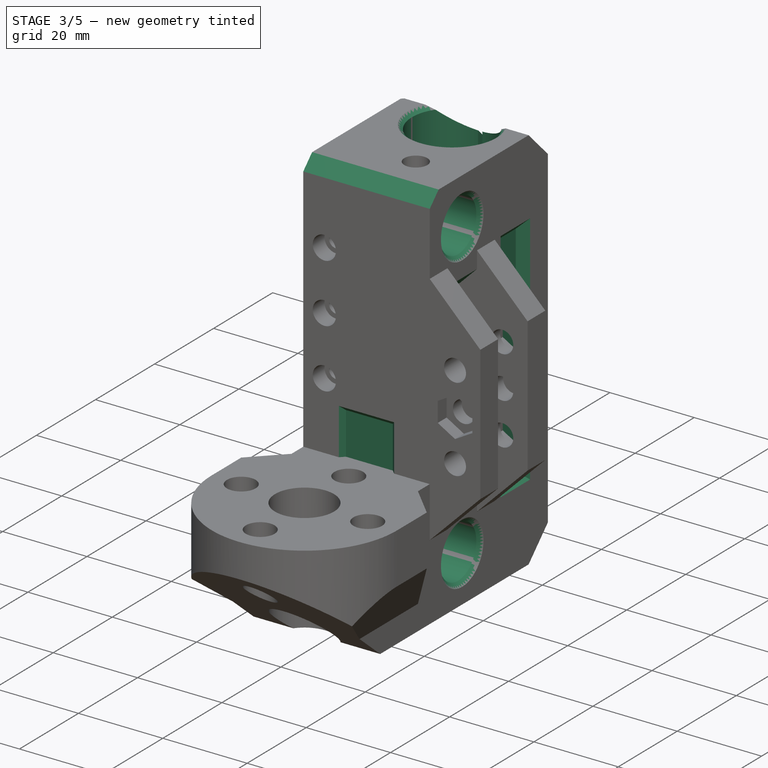
[diagram: stage 3 of 5 — iso view after this stage's code; geometry added in this stage tinted green]
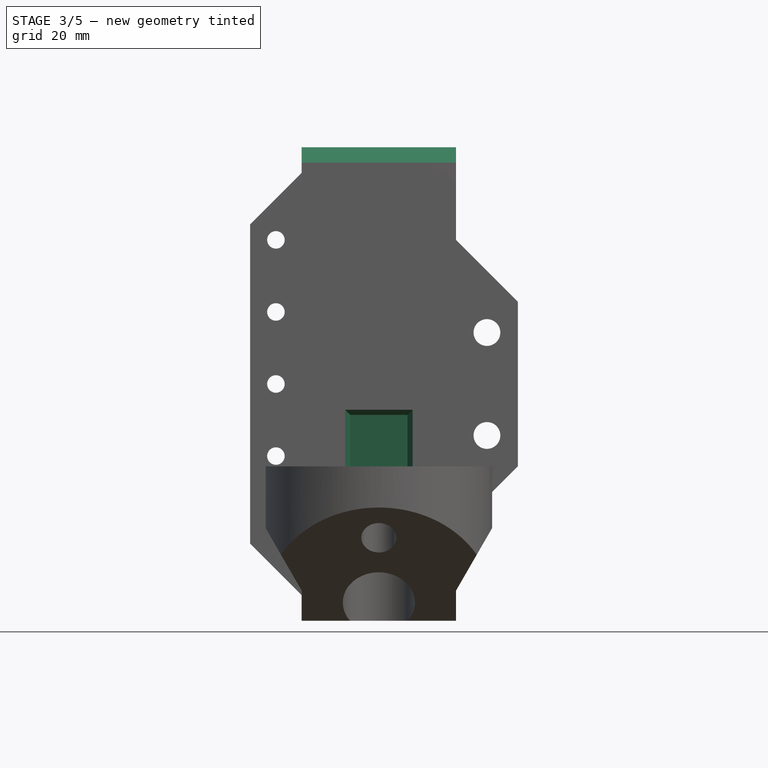
[diagram: stage 3 of 5 — front view after this stage's code; geometry added in this stage tinted green]
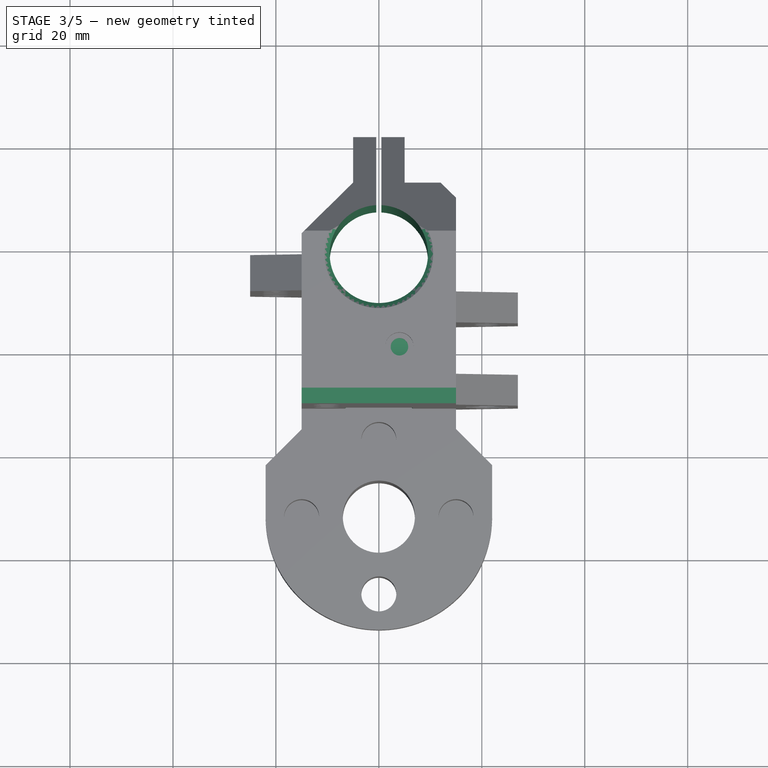
[diagram: stage 3 of 5 — top view after this stage's code; geometry added in this stage tinted green]
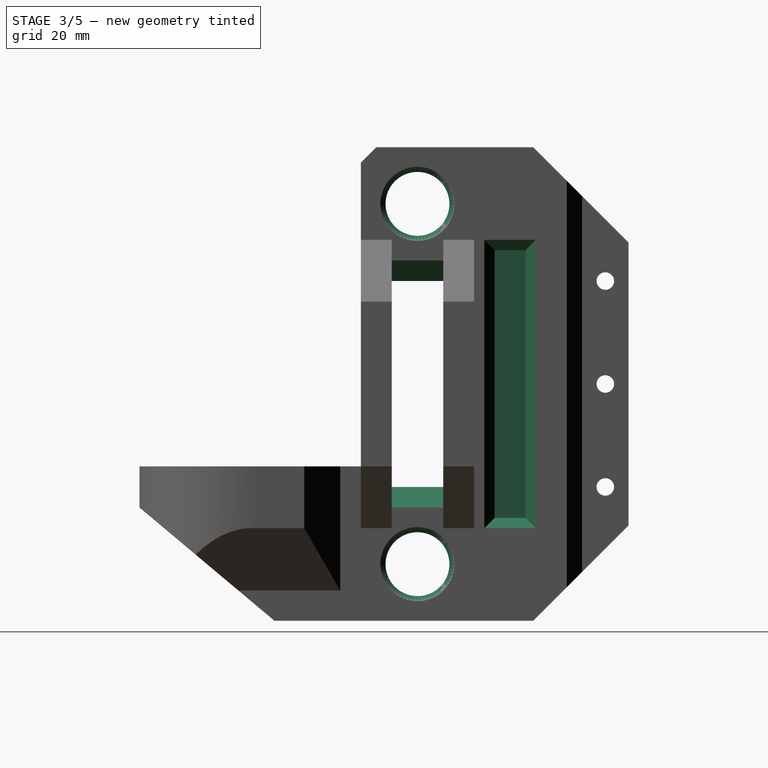
[diagram: stage 3 of 5 — right view after this stage's code; geometry added in this stage tinted green]
FEATURE [PartDesign::Body] Body007  label="ScrewBodyClone"
  AllowCompound = false
  Group = -> [Clone001]
  Origin = -> Origin010
  Tip = -> Clone001
FEATURE [PartDesign::Boolean] Boolean
  Group = -> [Body007,Body008,Body009]
  Refine = true
  Suppressed = false
  Type = 0
  UsePlacement = true
FEATURE [Sketcher::SketchObject] Sketch027  label="BearingSketch"
  ArcFitTolerance = 1e-06
  AttachmentSupport = -> [Boolean]
  ExternalGeometry = -> [Binder003]
  FullyConstrained = true
  MakeInternals = false
  MapMode = 5
  Placement = pos=(1.216e-13,3.993e-13,46) rot=(0,0,1;0rad)
  sketch-geometry (1):
    g0: Circle CenterX=-4.65e-14 CenterY=18 CenterZ=0 NormalX=0 NormalY=0 NormalZ=1 AngleXU=0 Radius=9.55
  constraints (2):
    c: Coincident(g0,g-3)
    c: Diameter(g0) = 19.1
FEATURE [PartDesign::Pocket] Pocket013  label="BearingPocket"
  BaseFeature = -> Boolean
  Direction = (-2.6e-15,-8.7e-15,-1)
  Length = 0
  Length2 = 5
  Profile = -> Sketch027
  ReferenceAxis = -> Sketch027 [N_Axis]
  Refine = true
  Suppressed = false
  Type = 3
  UpToFace = -> Boolean [Face125]
FEATURE [Sketcher::SketchObject] Sketch028  label="RailsSketch"
  ArcFitTolerance = 1e-06
  AttachmentSupport = -> [Pocket013]
  ExternalGeometry = -> [Binder004]
  FullyConstrained = true
  MakeInternals = false
  MapMode = 5
  Placement = pos=(-15,2.93e-14,-2.71e-14) rot=(-0.57735,0.57735,0.57735;4.18879rad)
  sketch-geometry (2):
    g0: Circle CenterX=0 CenterY=35 CenterZ=0 NormalX=0 NormalY=0 NormalZ=1 AngleXU=0 Radius=6.2
    g1: Circle CenterX=0 CenterY=-35 CenterZ=0 NormalX=0 NormalY=0 NormalZ=1 AngleXU=0 Radius=6.2
  constraints (4):
    c: Coincident(g0,g-3)
    c: Coincident(g1,g-4)
    c: Diameter(g0) = 12.4
    c: Equal(g1,g0)
FEATURE [PartDesign::Pocket] Pocket014  label="RailsPocket"
  BaseFeature = -> Pocket013
  Direction = (1,-1.9e-15,1.7e-15)
  Length = 50
  Length2 = 5
  Profile = -> Sketch028
  ReferenceAxis = -> Sketch028 [N_Axis]
  Refine = true
  Suppressed = false
  Type = 0
FEATURE [Sketcher::SketchObject] Sketch039
  ArcFitTolerance = 1e-06
  AttachmentSupport = -> [Pocket014]
  FullyConstrained = true
  MakeInternals = false
  MapMode = 5
  Placement = pos=(1.216e-13,3.993e-13,46) rot=(0,0,1;0rad)
  sketch-geometry (4):
    g0: LineSegment StartX=0.5 StartY=41 StartZ=0 EndX=0.5 EndY=18 EndZ=0
    g1: LineSegment StartX=-0.5 StartY=41 StartZ=0 EndX=-0.5 EndY=18 EndZ=0
    g2: LineSegment StartX=0.5 StartY=18 StartZ=0 EndX=-0.5 EndY=18 EndZ=0
    g3: LineSegment StartX=0.5 StartY=41 StartZ=0 EndX=-0.5 EndY=41 EndZ=0
  constraints (11):
    c: PointOnObject(g0,g-3)
    c: Vertical(g0)
    c: Vertical(g1)
    c: Coincident(g2,g0)
    c: Coincident(g2,g1)
    c: Coincident(g3,g0)
    c: Coincident(g3,g1)
    c: Horizontal(g2)
    c: DistanceX(g2,g2) = 1
    c: DistanceY(g0,g0) = 23
    c: Symmetric(g1,g0,g-2)
FEATURE [PartDesign::Pocket] Pocket020  label="BearingClampCutout"
  BaseFeature = -> Pocket014
  Direction = (-2.6e-15,-8.7e-15,-1)
  Length = 100
  Length2 = 5
  Profile = -> Sketch039
  ReferenceAxis = -> Sketch039 [N_Axis]
  Refine = true
  Suppressed = false
  Type = 0
FEATURE [PartDesign::Chamfer] Chamfer  label="BeltPathChamfer"
  Angle = 45
  Base = -> Pocket020 [Edge34,Edge32,Edge77,Edge75]
  BaseFeature = -> Pocket020
  ChamferType = 0
  FlipDirection = false
  Refine = true
  Size = 4
  Size2 = 1
  SupportTransform = false
  Suppressed = false
  UseAllEdges = false
FEATURE [PartDesign::Chamfer] Chamfer001  label="RodEdgesChamfer"
  Angle = 45
  Base = -> Chamfer [Edge63,Edge62,Edge42,Edge41,Edge101,Edge122]
  BaseFeature = -> Chamfer
  ChamferType = 0
  FlipDirection = false
  Refine = true
  Size = 1
  Size2 = 1
  SupportTransform = false
  Suppressed = false
  UseAllEdges = false
FEATURE [PartDesign::Chamfer] Chamfer002  label="BigEdgesChamfer"
  Angle = 45
  Base = -> Chamfer001 [Edge97,Edge148]
  BaseFeature = -> Chamfer001
  ChamferType = 0
  FlipDirection = false
  Refine = true
  Size = 3
  Size2 = 1
  SupportTransform = false
  Suppressed = false
  UseAllEdges = false
FEATURE [PartDesign::Body] Body013
  AllowCompound = false
  Group = -> [Sketch051,Pad019]
  Origin = -> Origin020
  Tip = -> Pad019
FEATURE [App::Part] Part006  label="LeadScrewHolesCalibration"
  Group = -> [Body013]
  Origin = -> Origin019
FEATURE [Sketcher::SketchObject] Sketch052  label="FaceCohesionSketch"
  ArcFitTolerance = 1e-06
  AttachmentSupport = -> [Chamfer002]
  FullyConstrained = true
  MakeInternals = false
  MapMode = 5
  Placement = pos=(15,0,1.47e-14) rot=(0.57735,0.57735,0.57735;2.0944rad)
FEATURE [PartDesign::SubShapeBinder] Binder005  label="TopProfileBinder001"
  BindCopyOnChange = 0
  BindMode = 0
  ClaimChildren = false
  Context = -> Part [Body006.Binder005.]
  Fuse = false
  MakeFace = true
  OffsetFill = false
  OffsetIntersection = false
  OffsetJoinType = 0
  OffsetOpenResult = false
  PartialLoad = false
  Refine = true
  Relative = true
  Support = -> [Sketch]
  _Version = 2
FEATURE [Sketcher::SketchObject] Sketch053
  ArcFitTolerance = 1e-06
  AttachmentSupport = -> [Chamfer002]
  ExternalGeometry = -> [Binder005,Chamfer002]
  FullyConstrained = true
  MakeInternals = false
  MapMode = 5
  Placement = pos=(0,0,-16) rot=(0,0,1;0rad)
  sketch-geometry (4):
    g0: LineSegment StartX=-6.55744 StartY=-11 StartZ=0 EndX=-5.55744 EndY=-10 EndZ=0
    g1: LineSegment StartX=-5.55744 StartY=-10 StartZ=0 EndX=5.55744 EndY=-10 EndZ=0
    g2: LineSegment StartX=5.55744 StartY=-10 StartZ=0 EndX=6.55744 EndY=-11 EndZ=0
    g3: LineSegment StartX=6.55744 StartY=-11 StartZ=0 EndX=-6.55744 EndY=-11 EndZ=0
  constraints (10):
    c: Coincident(g0,g1)
    c: Coincident(g1,g2)
    c: PointOnObject(g2,g-3)
    c: Coincident(g2,g3)
    c: Coincident(g3,g0)
    c: DistanceY(g2,g1) = 1
    c: PointOnObject(g2,g-4)
    c: Symmetric(g0,g1,g-2)
    c: Symmetric(g0,g2,g-2)
    c: Angle(g0,g1) = 2.35619
FEATURE [PartDesign::Pocket] Pocket030  label="ScrewFlangeClearance"
  BaseFeature = -> Chamfer002
  Direction = (0,0,-1)
  Length = 10
  Length2 = 5
  Profile = -> Sketch053
  ReferenceAxis = -> Sketch053 [N_Axis]
  Refine = true
  Reversed = true
  Suppressed = false
  Type = 0
FEATURE [PartDesign::Draft] Draft
  Angle = 45
  Base = -> Pocket030 [Face34]
  BaseFeature = -> Pocket030
  NeutralPlane = -> Pocket030 [Face110]
  Refine = true
  Reversed = true
  SupportTransform = false
  Suppressed = false
FEATURE [Sketcher::SketchObject] Sketch054  label="PerimeterCohesionSketch"
  ArcFitTolerance = 1e-06
  AttachmentSupport = -> [XY_Plane009]
  ExternalGeometry = -> [Binder005]
  FullyConstrained = true
  MakeInternals = false
  MapMode = 5
  sketch-geometry (5):
    g0: LineSegment [constr] StartX=0 StartY=18 StartZ=0 EndX=16 EndY=18 EndZ=0
    g1: LineSegment StartX=16 StartY=24 StartZ=0 EndX=16 EndY=12 EndZ=0
    g2: LineSegment StartX=16 StartY=24 StartZ=0 EndX=13 EndY=21 EndZ=0
    g3: LineSegment StartX=13 StartY=21 StartZ=0 EndX=13 EndY=15 EndZ=0
    g4: LineSegment StartX=13 StartY=15 StartZ=0 EndX=16 EndY=12 EndZ=0
  constraints (13):
    c: Coincident(g0,g-3)
    c: Horizontal(g0)
    c: Coincident(g1,g2)
    c: Coincident(g2,g3)
    c: Coincident(g3,g4)
    c: Coincident(g4,g1)
    c: Symmetric(g2,g3,g0)
    c: PointOnObject(g0,g1)
    c: Symmetric(g1,g1,g0)
    c: DistanceX(g2,g1) = 3
    c: DistanceX(g0,g0) = 16
    c: Angle(g3,g2) = 2.35619
    c: DistanceY(g3,g3) = 6
FEATURE [PartDesign::Pocket] Pocket031  label="PerimetersCohesionInset"
  BaseFeature = -> Draft
  Direction = (0,0,-1)
  Length = 52
  Length2 = 5
  Midplane = true
  Profile = -> Sketch054
  ReferenceAxis = -> Sketch054 [N_Axis]
  Refine = true
  Suppressed = false
  Type = 0
FEATURE [PartDesign::Draft] Draft001
  Angle = 45
  Base = -> Pocket031 [Face37,Face39]
  BaseFeature = -> Pocket031
  NeutralPlane = -> Pocket031 [Face99]
  Refine = true
  Reversed = true
  SupportTransform = false
  Suppressed = false
FEATURE [Sketcher::SketchObject] Sketch055
  ArcFitTolerance = 1e-06
  AttachmentSupport = -> [Draft001]
  FullyConstrained = false
  MakeInternals = false
  MapMode = 5
  Placement = pos=(-9.29e-14,-4.02e-14,-46) rot=(1,0,0;3.14159rad)
  sketch-geometry (3):
    g0: Circle CenterX=10 CenterY=18 CenterZ=0 NormalX=0 NormalY=0 NormalZ=1 AngleXU=0 Radius=1.42528
    g1: Circle CenterX=10 CenterY=9 CenterZ=0 NormalX=0 NormalY=0 NormalZ=1 AngleXU=0 Radius=1.50884
    g2: LineSegment [constr] StartX=10 StartY=18 StartZ=0 EndX=10 EndY=9 EndZ=0
  constraints (6):
    c: Coincident(g2,g0)
    c: Coincident(g2,g1)
    c: Vertical(g2)
    c: DistanceY(g2,g2) = 9
    c: DistanceX(g-1,g1) = 10
    c: DistanceY(g-1,g1) = 9
FEATURE [PartDesign::Hole] Hole005  label="EndStopHoles"
  BaseFeature = -> Draft001
  CustomThreadClearance = 0
  Depth = 5
  DepthType = 0
  Diameter = 3.4
  DrillForDepth = false
  DrillPoint = 0
  DrillPointAngle = 118
  HoleCutCountersinkAngle = 90
  HoleCutCustomValues = false
  HoleCutDepth = 0
  HoleCutDiameter = 6.1
  HoleCutType = 0
  ModelThread = false
  Profile = -> Sketch055
  Refine = true
  Suppressed = false
  Tapered = false
  TaperedAngle = 90
  ThreadClass = 0
  ThreadDepth = 5
  ThreadDepthType = 0
  ThreadDirection = 0
  ThreadFit = 0
  ThreadSize = 0
  ThreadType = 0
  Threaded = false
  UseCustomThreadClearance = false
FEATURE [PartDesign::Chamfer] Chamfer006  label="EndStopHolesChamfer"
  Angle = 45
  Base = -> Hole005 [Edge170,Edge171]
  BaseFeature = -> Hole005
  ChamferType = 0
  FlipDirection = false
  Refine = true
  Size = 1
  Size2 = 1
  SupportTransform = false
  Suppressed = false
  UseAllEdges = false
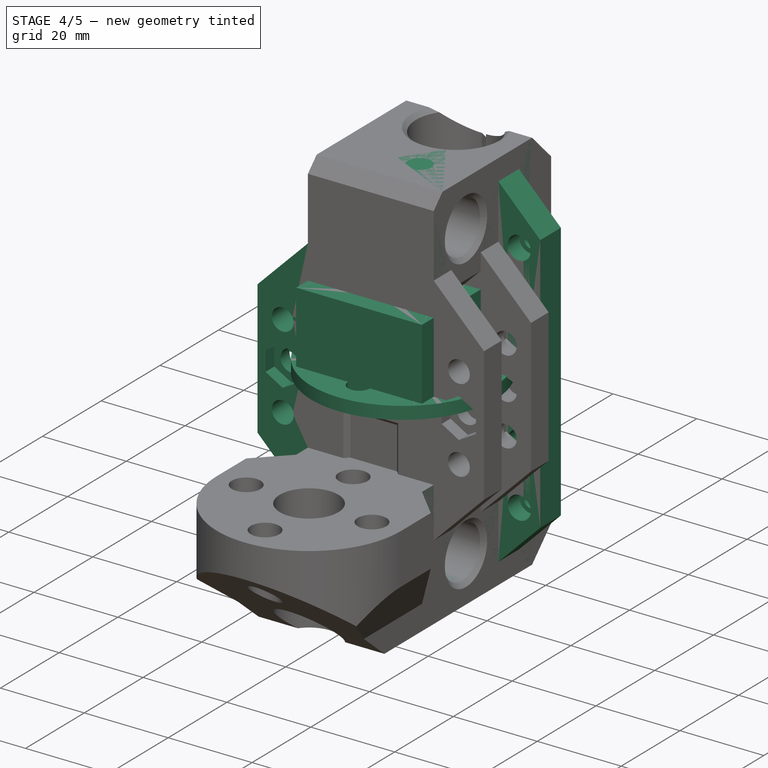
[diagram: stage 4 of 5 — iso view after this stage's code; geometry added in this stage tinted green]
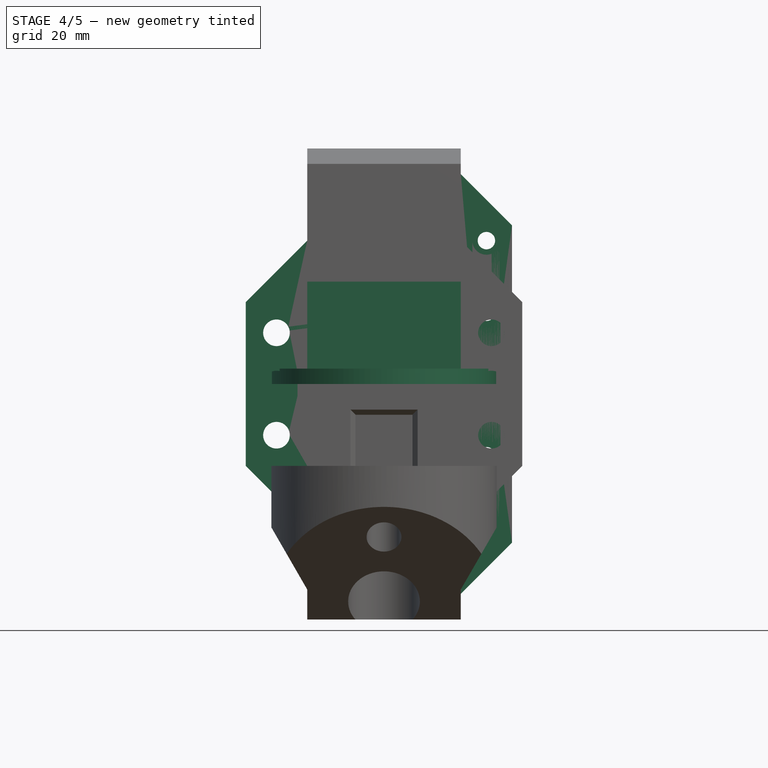
[diagram: stage 4 of 5 — front view after this stage's code; geometry added in this stage tinted green]
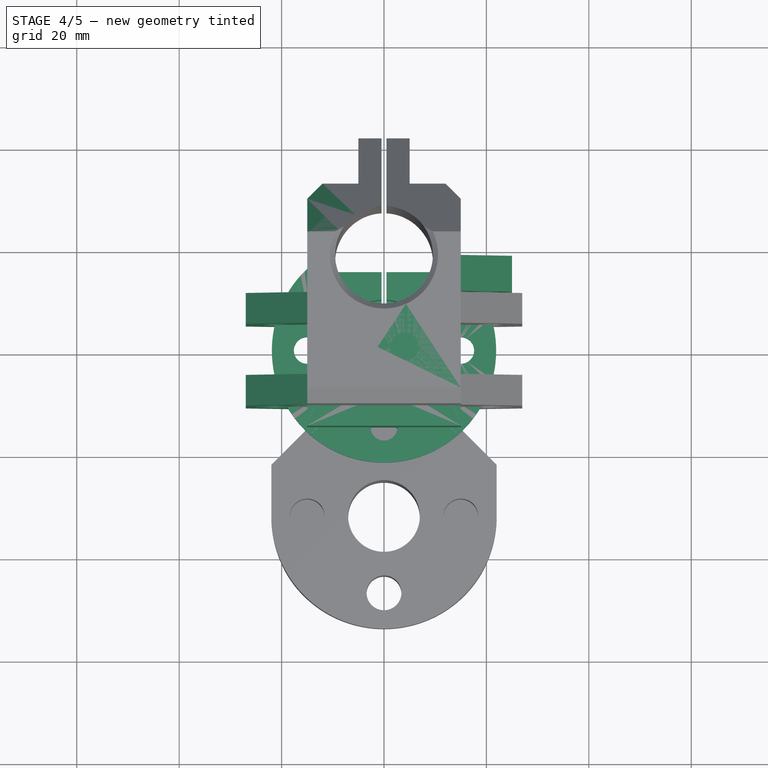
[diagram: stage 4 of 5 — top view after this stage's code; geometry added in this stage tinted green]
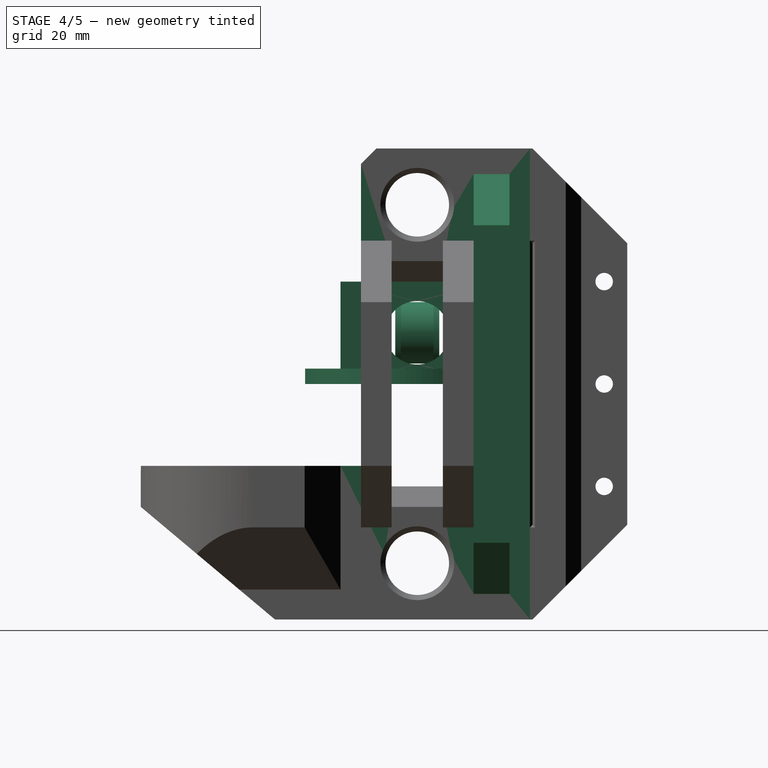
[diagram: stage 4 of 5 — right view after this stage's code; geometry added in this stage tinted green]
FEATURE [Sketcher::SketchObject] Sketch009  label="BearingHoleSketch"
  ArcFitTolerance = 1e-06
  AttachmentSupport = -> [Pad]
  ExternalGeometry = -> [Binder]
  FullyConstrained = true
  MakeInternals = false
  MapMode = 5
  Placement = pos=(0,1.01e-14,46) rot=(0,0,-1;1.5708rad)
  sketch-geometry (1):
    g0: Circle CenterX=-18 CenterY=0 CenterZ=0 NormalX=0 NormalY=0 NormalZ=1 AngleXU=0 Radius=9.6
  constraints (2):
    c: Diameter(g0) = 19.2
    c: Coincident(g0,g-3)
FEATURE [Sketcher::SketchObject] Sketch011  label="PulleysBlockSketch"
  ArcFitTolerance = 1e-06
  AttachmentOffset = pos=(0,0,-11) rot=(0,0,1;0rad)
  AttachmentSupport = -> [Pad]
  ExternalGeometry = -> [Binder001,Pad]
  FullyConstrained = true
  MakeInternals = false
  MapMode = 5
  Placement = pos=(-2.4e-15,-1.8e-15,0) rot=(0.57735,0.57735,-0.57735;2.0944rad)
  sketch-geometry (5):
    g0: LineSegment StartX=-16 StartY=27 StartZ=0 EndX=16 EndY=27 EndZ=0
    g1: LineSegment StartX=16 StartY=27 StartZ=0 EndX=28 EndY=15 EndZ=0
    g2: LineSegment StartX=-28 StartY=15 StartZ=0 EndX=-16 EndY=27 EndZ=0
    g3: LineSegment StartX=28 StartY=15 StartZ=0 EndX=-28 EndY=15 EndZ=0
    g4: LineSegment [constr] StartX=28 StartY=15 StartZ=0 EndX=46 EndY=15 EndZ=0
  constraints (12):
    c: Coincident(g0,g1)
    c: Coincident(g2,g0)
    c: Symmetric(g2,g1,g-2)
    c: Coincident(g3,g1)
    c: Coincident(g3,g2)
    c: DistanceX(g0,g0) = 32
    c: DistanceY(g1,g0) = 12
    c: Coincident(g4,g1)
    c: Coincident(g4,g-5)
    c: Horizontal(g4)
    c: Angle(g1,g3) = 0.785398
    c: Symmetric(g0,g0,g-2)
FEATURE [Sketcher::SketchObject] Sketch012
  ArcFitTolerance = 1e-06
  AttachmentSupport = -> [XZ_Plane003]
  FullyConstrained = true
  MakeInternals = false
  MapMode = 5
  Placement = pos=(0,0,0) rot=(1,0,0;1.5708rad)
  sketch-geometry (2):
    g0: Circle CenterX=0 CenterY=0 CenterZ=0 NormalX=0 NormalY=0 NormalZ=1 AngleXU=0 Radius=6
    g1: Circle CenterX=0 CenterY=0 CenterZ=0 NormalX=0 NormalY=0 NormalZ=1 AngleXU=0 Radius=9
  constraints (4):
    c: Coincident(g0,g-1)
    c: Diameter(g0) = 12
    c: Coincident(g1,g0)
    c: Diameter(g1) = 18
FEATURE [PartDesign::Pad] Pad010
  Direction = (0,-1,2e-16)
  Length = 8.6
  Length2 = 10
  Midplane = true
  Placement = pos=(0,0,0) rot=(1,0,0;1.5708rad)
  Profile = -> Sketch012 [Edge2]
  ReferenceAxis = -> Sketch012 [N_Axis]
  Refine = true
  Suppressed = false
  Type = 0
FEATURE [PartDesign::Pocket] Pocket005
  BaseFeature = -> Pad010
  Direction = (0,1,-2e-16)
  Length = 6.4
  Length2 = 5
  Midplane = true
  Placement = pos=(0,0,0) rot=(1,0,0;1.5708rad)
  Profile = -> Sketch012
  ReferenceAxis = -> Sketch012 [N_Axis]
  Refine = true
  Suppressed = false
  Type = 0
FEATURE [PartDesign::Hole] Hole
  BaseFeature = -> Pocket005
  CustomThreadClearance = 0
  Depth = 25
  DepthType = 0
  Diameter = 5
  DrillForDepth = false
  DrillPoint = 1
  DrillPointAngle = 118
  HoleCutCountersinkAngle = 90
  HoleCutCustomValues = false
  HoleCutDepth = 0
  HoleCutDiameter = 6.1
  HoleCutType = 0
  ModelThread = false
  Placement = pos=(0,0,0) rot=(1,0,0;1.5708rad)
  Profile = -> Pocket005 [Edge1]
  Refine = true
  Suppressed = false
  Tapered = false
  TaperedAngle = 90
  ThreadClass = 0
  ThreadDepth = 25
  ThreadDepthType = 0
  ThreadDirection = 0
  ThreadFit = 0
  ThreadSize = 0
  ThreadType = 0
  Threaded = false
  UseCustomThreadClearance = false
FEATURE [PartDesign::Body] Body011  label="Body"
  AllowCompound = false
  Group = -> [Sketch046,Revolution001]
  Origin = -> Origin016
  Placement = pos=(0.1,-47.5,-11) rot=(0,0,1;0rad)
  Tip = -> Revolution001
FEATURE [App::Part] Part004  label="M5Screw"
  Group = -> [Body011]
  Origin = -> Origin015
FEATURE [Sketcher::SketchObject] Sketch047
  ArcFitTolerance = 1e-06
  AttachmentSupport = -> [XY_Plane018]
  FullyConstrained = true
  MakeInternals = false
  MapMode = 5
  sketch-geometry (6):
    g0: LineSegment StartX=-15 StartY=15 StartZ=0 EndX=-15 EndY=-15 EndZ=0
    g1: LineSegment StartX=-15 StartY=-15 StartZ=0 EndX=15 EndY=-15 EndZ=0
    g2: LineSegment StartX=15 StartY=-15 StartZ=0 EndX=15 EndY=15 EndZ=0
    g3: LineSegment StartX=15 StartY=15 StartZ=0 EndX=-15 EndY=15 EndZ=0
    g4: LineSegment [constr] StartX=-15 StartY=15 StartZ=0 EndX=15 EndY=-15 EndZ=0
    g5: Circle CenterX=0 CenterY=0 CenterZ=0 NormalX=0 NormalY=0 NormalZ=1 AngleXU=0 Radius=9.6
  constraints (15):
    c: Coincident(g0,g1)
    c: Coincident(g1,g2)
    c: Coincident(g2,g3)
    c: Coincident(g3,g0)
    c: Vertical(g0)
    c: Vertical(g2)
    c: Horizontal(g1)
    c: Horizontal(g3)
    c: Coincident(g4,g0)
    c: Coincident(g4,g1)
    c: Symmetric(g0,g1,g-1)
    c: DistanceY(g2,g2) = 30
    c: Equal(g2,g3)
    c: Coincident(g5,g-1)
    c: Radius(g5) = 9.6
FEATURE [PartDesign::Pad] Pad018
  Direction = (0,0,1)
  Length = 20
  Length2 = 10
  Profile = -> Sketch047
  ReferenceAxis = -> Sketch047 [N_Axis]
  Refine = true
  Suppressed = false
  Type = 0
FEATURE [Sketcher::SketchObject] Sketch048
  ArcFitTolerance = 1e-06
  AttachmentSupport = -> [YZ_Plane018]
  FullyConstrained = true
  MakeInternals = false
  MapMode = 5
  Placement = pos=(0,0,0) rot=(0.57735,0.57735,0.57735;2.0944rad)
  sketch-geometry (5):
    g0: LineSegment StartX=9.6 StartY=10.75 StartZ=0 EndX=9.6 EndY=9.25 EndZ=0
    g1: LineSegment StartX=9.6 StartY=9.25 StartZ=0 EndX=8.7 EndY=9.75 EndZ=0
    g2: LineSegment StartX=8.7 StartY=9.75 StartZ=0 EndX=8.7 EndY=10.25 EndZ=0
    g3: LineSegment StartX=8.7 StartY=10.25 StartZ=0 EndX=9.6 EndY=10.75 EndZ=0
    g4: LineSegment [constr] StartX=8.7 StartY=10 StartZ=0 EndX=9.6 EndY=10 EndZ=0
  constraints (14):
    c: Vertical(g0)
    c: Coincident(g0,g1)
    c: Coincident(g1,g2)
    c: Coincident(g2,g3)
    c: Coincident(g3,g0)
    c: DistanceY(g0,g0) = 1.5
    c: Vertical(g2)
    c: Symmetric(g2,g2,g4)
    c: Symmetric(g0,g0,g4)
    c: Horizontal(g4)
    c: DistanceX(g2,g0) = 0.9
    c: DistanceY(g1,g2) = 0.5
    c: DistanceX(g-1,g0) = 9.6
    c: DistanceY(g-1,g4) = 10
FEATURE [PartDesign::Revolution] Revolution002
  Angle = 360
  Angle2 = 60
  Axis = (0,0,1)
  Base = (0,0,0)
  BaseFeature = -> Pad018
  Profile = -> Sketch048
  ReferenceAxis = -> Sketch048 [V_Axis]
  Refine = true
  Reversed = true
  Suppressed = false
  Type = 0
FEATURE [Sketcher::SketchObject] Sketch049
  ArcFitTolerance = 1e-06
  AttachmentSupport = -> [Revolution002]
  ExternalGeometry = -> [Revolution002]
  FullyConstrained = true
  MakeInternals = false
  MapMode = 5
  Placement = pos=(0,0,20) rot=(0,0,1;0rad)
  sketch-geometry (4):
    g0: LineSegment StartX=-0.5 StartY=0 StartZ=0 EndX=0.5 EndY=0 EndZ=0
    g1: LineSegment StartX=0.5 StartY=0 StartZ=0 EndX=0.5 EndY=15 EndZ=0
    g2: LineSegment StartX=0.5 StartY=15 StartZ=0 EndX=-0.5 EndY=15 EndZ=0
    g3: LineSegment StartX=-0.5 StartY=15 StartZ=0 EndX=-0.5 EndY=0 EndZ=0
  constraints (11):
    c: Coincident(g0,g1)
    c: Coincident(g1,g2)
    c: Coincident(g2,g3)
    c: Coincident(g3,g0)
    c: Horizontal(g0)
    c: Horizontal(g2)
    c: Vertical(g1)
    c: Vertical(g3)
    c: DistanceX(g0,g0) = 1
    c: Symmetric(g0,g0,g-1)
    c: PointOnObject(g1,g-3)
FEATURE [PartDesign::Pocket] Pocket028
  BaseFeature = -> Revolution002
  Direction = (0,0,-1)
  Length = 0
  Length2 = 5
  Profile = -> Sketch049
  ReferenceAxis = -> Sketch049 [N_Axis]
  Refine = true
  Suppressed = false
  Type = 3
  UpToFace = -> Revolution002 [Face5]
FEATURE [Sketcher::SketchObject] Sketch050
  ArcFitTolerance = 1e-06
  AttachmentSupport = -> [Pocket028]
  FullyConstrained = true
  MakeInternals = false
  MapMode = 5
  Placement = pos=(-15,0,0) rot=(0.57735,-0.57735,-0.57735;2.0944rad)
  sketch-geometry (1):
    g0: Circle CenterX=0 CenterY=10 CenterZ=0 NormalX=0 NormalY=0 NormalZ=1 AngleXU=0 Radius=6.2
  constraints (3):
    c: PointOnObject(g0,g-2)
    c: DistanceY(g-1,g0) = 10
    c: Diameter(g0) = 12.4
FEATURE [PartDesign::Pocket] Pocket029
  BaseFeature = -> Pocket028
  Direction = (1,0,0)
  Length = 40
  Length2 = 5
  Profile = -> Sketch050
  ReferenceAxis = -> Sketch050 [N_Axis]
  Refine = true
  Suppressed = false
  Type = 0
FEATURE [PartDesign::Body] Body012  label="BearingCalibrationBody"
  AllowCompound = false
  Group = -> [Sketch047,Pad018,Sketch048,Revolution002,Sketch049,Pocket028,Sketch050,Pocket029,Chamfer004,Chamfer005]
  Origin = -> Origin018
  Tip = -> Chamfer005
FEATURE [App::Part] Part005  label="BearingCalibration"
  Group = -> [Body012]
  Origin = -> Origin017
FEATURE [Sketcher::SketchObject] Sketch051
  ArcFitTolerance = 1e-06
  AttachmentSupport = -> [XY_Plane020]
  FullyConstrained = true
  MakeInternals = false
  MapMode = 5
  sketch-geometry (8):
    g0: ArcOfCircle CenterX=0 CenterY=0 CenterZ=0 NormalX=0 NormalY=0 NormalZ=1 AngleXU=0 Radius=21.9 StartAngle=2.11029 EndAngle=7.31449
    g1: ArcOfCircle CenterX=0 CenterY=0 CenterZ=0 NormalX=0 NormalY=0 NormalZ=1 AngleXU=0 Radius=11.25 StartAngle=3.14159 EndAngle=6.28319
    g2: Circle [constr] CenterX=0 CenterY=0 CenterZ=0 NormalX=0 NormalY=0 NormalZ=1 AngleXU=0 Radius=15
    g3: Circle CenterX=15 CenterY=0 CenterZ=0 NormalX=0 NormalY=0 NormalZ=1 AngleXU=0 Radius=2.6
    g4: Circle CenterX=-15 CenterY=0 CenterZ=0 NormalX=0 NormalY=0 NormalZ=1 AngleXU=0 Radius=2.6
    g5: Circle CenterX=0 CenterY=-15 CenterZ=0 NormalX=0 NormalY=0 NormalZ=1 AngleXU=0 Radius=2.6
    g6: LineSegment StartX=-11.25 StartY=1.4e-15 StartZ=0 EndX=-11.25 EndY=18.7896 EndZ=0
    g7: LineSegment StartX=11.25 StartY=-2.8e-15 StartZ=0 EndX=11.25 EndY=18.7896 EndZ=0
  constraints (21):
    c: Coincident(g0,g-1)
    c: Coincident(g1,g0)
    c: Coincident(g2,g0)
    c: Diameter(g1) = 22.5
    c: Diameter(g2) = 30
    c: PointOnObject(g3,g2)
    c: PointOnObject(g4,g2)
    c: Diameter(g3) = 5.2
    c: Equal(g3,g4)
    c: PointOnObject(g5,g2)
    c: Diameter(g5) = 5.2
    c: PointOnObject(g4,g-1)
    c: PointOnObject(g3,g-1)
    c: PointOnObject(g5,g-2)
    c: Vertical(g6)
    c: Vertical(g7)
    c: Diameter(g0) = 43.8
    c: Tangent(g1,g7) = -1.5708
    c: Tangent(g1,g6) = 1.5708
    c: Coincident(g0,g7)
    c: Coincident(g0,g6)
FEATURE [PartDesign::Pad] Pad019
  Direction = (0,0,1)
  Length = 3
  Length2 = 10
  Profile = -> Sketch051
  ReferenceAxis = -> Sketch051 [N_Axis]
  Refine = true
  Suppressed = false
  Type = 0
FEATURE [PartDesign::Body] Body006  label="UnionBody"
  AllowCompound = false
  Group = -> [Boolean,Sketch027,Binder003,Pocket013,Binder004,Sketch028,Pocket014,Sketch039,Pocket020,Binder005,Chamfer,Chamfer001,Chamfer002,Sketch052,Sketch053,Pocket030,Draft,Sketch054,Pocket031,Draft001,Sketch055,Hole005,Chamfer006]
  Origin = -> Origin009
  Tip = -> Chamfer006
FEATURE [PartDesign::FeatureBase] Clone004
  BaseFeature = -> Body006
  Suppressed = false
FEATURE [Sketcher::SketchObject] Sketch056
  ArcFitTolerance = 1e-06
  AttachmentSupport = -> [XY_Plane022]
  FullyConstrained = true
  MakeInternals = false
  MapMode = 2
  sketch-geometry (4):
    g0: LineSegment StartX=-25 StartY=18 StartZ=0 EndX=-25 EndY=11 EndZ=0
    g1: LineSegment StartX=-25 StartY=11 StartZ=0 EndX=-15 EndY=11 EndZ=0
    g2: LineSegment StartX=-15 StartY=11 StartZ=0 EndX=-15 EndY=18 EndZ=0
    g3: LineSegment StartX=-15 StartY=18 StartZ=0 EndX=-25 EndY=18 EndZ=0
  constraints (12):
    c: Coincident(g0,g1)
    c: Coincident(g1,g2)
    c: Coincident(g2,g3)
    c: Coincident(g3,g0)
    c: Vertical(g0)
    c: Vertical(g2)
    c: Horizontal(g1)
    c: Horizontal(g3)
    c: DistanceY(g0,g0) = 7
    c: DistanceY(g-1,g1) = 11
    c: DistanceX(g3,g3) = 10
    c: DistanceX(g1,g-1) = 15
FEATURE [PartDesign::Pocket] Pocket032  label="RemoveMotorMount"
  BaseFeature = -> Clone004
  Direction = (0,0,-1)
  Length = 100
  Length2 = 5
  Midplane = true
  Profile = -> Sketch056
  ReferenceAxis = -> Sketch056 [N_Axis]
  Refine = true
  Suppressed = false
  Type = 0
FEATURE [PartDesign::Body] Body014  label="Z0 Axis Body"
  AllowCompound = false
  Group = -> [Clone004,Sketch056,Pocket032]
  Origin = -> Origin022
  Tip = -> Pocket032
FEATURE [App::Part] Part007  label="Z0 Axis"
  Group = -> [Body014]
  Origin = -> Origin021
FEATURE [PartDesign::FeatureBase] Clone005
  BaseFeature = -> Body001
  Placement = pos=(0,0,10) rot=(0,0,1;0rad)
  Suppressed = false
FEATURE [PartDesign::Body] Body016  label="PulleyCenter"
  AllowCompound = false
  Group = -> [Clone005]
  Origin = -> Origin024
  Placement = pos=(0,0,-10) rot=(0,0,1;0rad)
  Tip = -> Clone005
FEATURE [App::Part] Part009  label="Pulley Single"
  Group = -> [Body016]
  Origin = -> Origin026
  Placement = pos=(-21,0,0) rot=(0,0,1;0rad)
FEATURE [App::DocumentObjectGroup] Group001  label="Reference Objects"
  Group = -> [Part002,Part001,Part004,Part009]
FEATURE [Part::Mirroring] Part__Mirroring  label="UnionBodyMirrored"
  Base = (0,0,0)
  Normal = (1,0,0)
  Source = -> Body006
FEATURE [App::Part] Part008  label="Z1 Axis Mirrored (Correct)"
  Group = -> [Body006,Part__Mirroring]
  Origin = -> Origin025
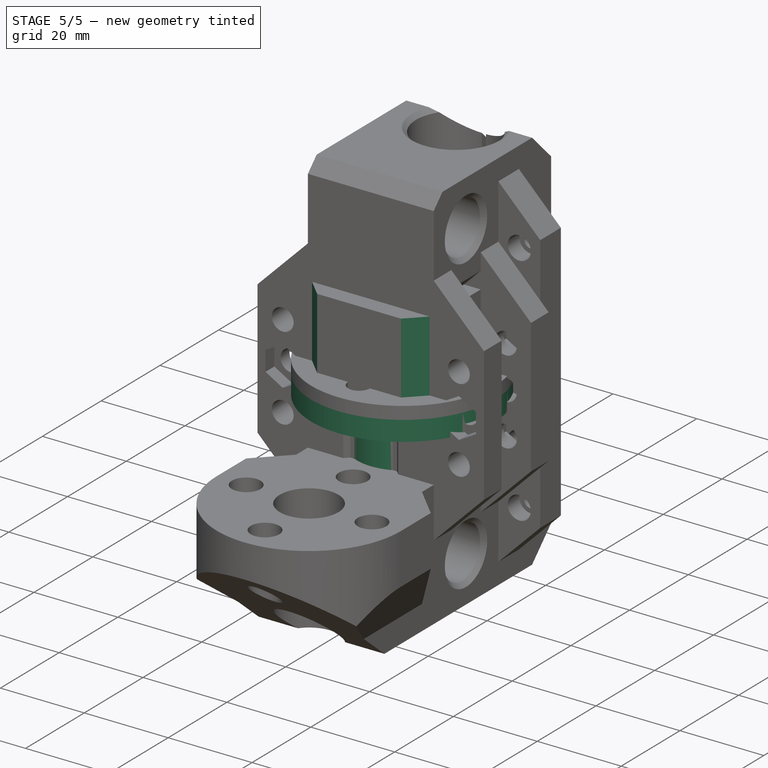
[diagram: stage 5 of 5 — iso view after this stage's code; geometry added in this stage tinted green]
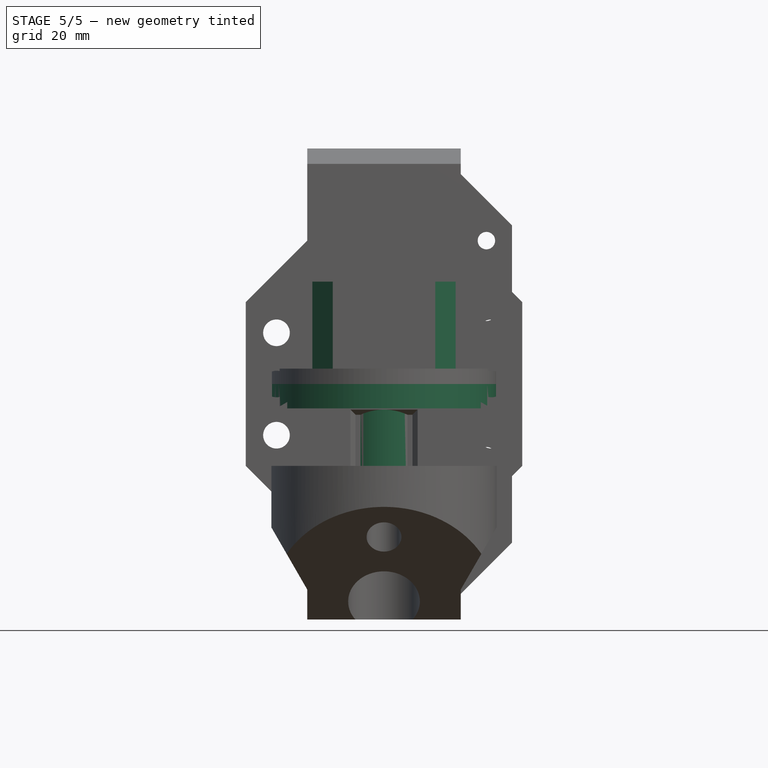
[diagram: stage 5 of 5 — front view after this stage's code; geometry added in this stage tinted green]
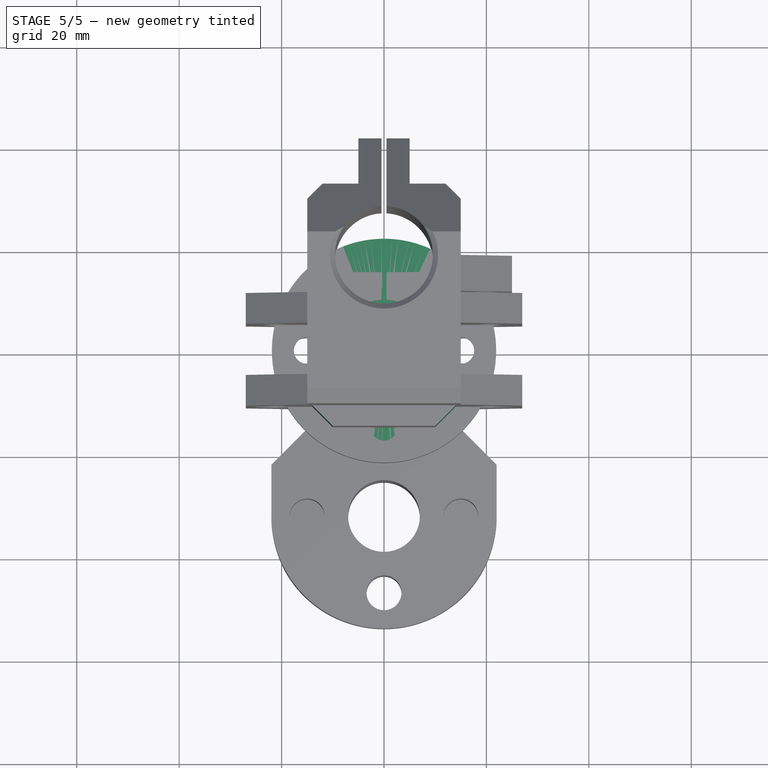
[diagram: stage 5 of 5 — top view after this stage's code; geometry added in this stage tinted green]
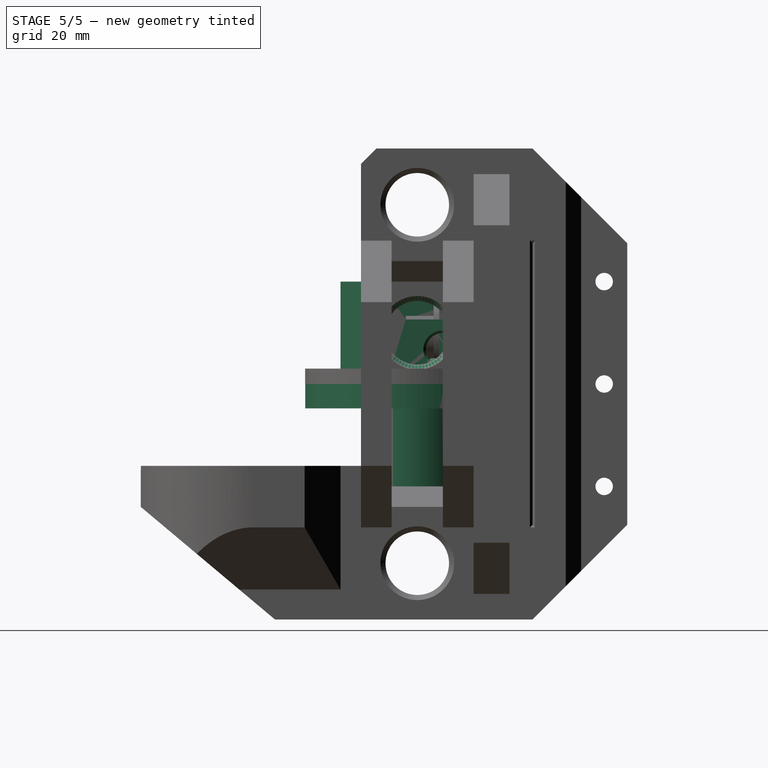
[diagram: stage 5 of 5 — right view after this stage's code; geometry added in this stage tinted green]
FEATURE [PartDesign::Body] Body001  label="PulleyUpper"
  AllowCompound = false
  Group = -> [Sketch012,Pad010,Pocket005,Hole]
  Origin = -> Origin003
  Placement = pos=(0,0,10) rot=(0,0,1;0rad)
  Tip = -> Hole
FEATURE [PartDesign::FeatureBase] Clone
  BaseFeature = -> Body001
  Suppressed = false
FEATURE [PartDesign::Body] Body002  label="PulleyLower"
  AllowCompound = false
  Group = -> [Clone]
  Origin = -> Origin004
  Placement = pos=(0,0,-10) rot=(0,0,1;0rad)
  Tip = -> Clone
FEATURE [App::Part] Part001  label="Pulley IDEX"
  Group = -> [Body001,Body002]
  Origin = -> Origin002
  Placement = pos=(21,0,0) rot=(0,0,1;0rad)
FEATURE [Sketcher::SketchObject] Sketch014
  ArcFitTolerance = 1e-06
  AttachmentSupport = -> [XY_Plane006]
  FullyConstrained = false
  MakeInternals = false
  MapMode = 5
  sketch-geometry (4):
    g0: Circle CenterX=0 CenterY=0 CenterZ=0 NormalX=0 NormalY=0 NormalZ=1 AngleXU=0 Radius=6
    g1: Circle CenterX=0 CenterY=0 CenterZ=0 NormalX=0 NormalY=0 NormalZ=1 AngleXU=0 Radius=21.875
    g2: Circle CenterX=-15.3651 CenterY=0 CenterZ=0 NormalX=0 NormalY=0 NormalZ=1 AngleXU=0 Radius=2.5
    g3: Circle CenterX=15.6349 CenterY=0 CenterZ=0 NormalX=0 NormalY=0 NormalZ=1 AngleXU=0 Radius=2.5
  constraints (7):
    c: Diameter(g0) = 12
    c: Diameter(g1) = 43.75
    c: PointOnObject(g2,g-1)
    c: PointOnObject(g3,g-1)
    c: Diameter(g2) = 5
    c: Equal(g3,g2)
    c: DistanceX(g2,g3) = 31
FEATURE [PartDesign::Pad] Pad011
  Direction = (0,0,1)
  Length = 4.75
  Length2 = 10
  Profile = -> Sketch014
  ReferenceAxis = -> Sketch014 [N_Axis]
  Refine = true
  Reversed = true
  Suppressed = false
  Type = 0
FEATURE [Sketcher::SketchObject] Sketch015
  ArcFitTolerance = 1e-06
  AttachmentSupport = -> [Pad011]
  FullyConstrained = true
  MakeInternals = false
  MapMode = 5
  Placement = pos=(0,0,-4.75) rot=(1,0,0;3.14159rad)
  sketch-geometry (2):
    g0: Circle CenterX=0 CenterY=0 CenterZ=0 NormalX=0 NormalY=0 NormalZ=1 AngleXU=0 Radius=11
    g1: Circle CenterX=0 CenterY=0 CenterZ=0 NormalX=0 NormalY=0 NormalZ=1 AngleXU=0 Radius=6
  constraints (4):
    c: Coincident(g0,g-1)
    c: Diameter(g0) = 22
    c: Coincident(g1,g0)
    c: Diameter(g1) = 12
FEATURE [PartDesign::Pad] Pad012
  BaseFeature = -> Pad011
  Direction = (0,0,-1)
  Length = 24
  Length2 = 10
  Profile = -> Sketch015
  ReferenceAxis = -> Sketch015 [N_Axis]
  Refine = true
  Suppressed = false
  Type = 0
FEATURE [PartDesign::Body] Body009  label="CentralBodyClone"
  AllowCompound = false
  Group = -> [Clone003]
  Origin = -> Origin012
  Tip = -> Clone003
FEATURE [Sketcher::SketchObject] Sketch040
  ArcFitTolerance = 1e-06
  AttachmentSupport = -> [YZ_Plane014]
  FullyConstrained = true
  MakeInternals = false
  MapMode = 5
  Placement = pos=(0,0,0) rot=(0.57735,0.57735,0.57735;2.0944rad)
  sketch-geometry (8):
    g0: LineSegment StartX=-6.02062 StartY=5 StartZ=0 EndX=-6.02062 EndY=0 EndZ=0
    g1: LineSegment StartX=-6.02062 StartY=0 StartZ=0 EndX=6.02062 EndY=0 EndZ=0
    g2: LineSegment StartX=6.02062 StartY=0 StartZ=0 EndX=11.9794 EndY=5 EndZ=0
    g3: LineSegment [constr] StartX=11.9794 StartY=5 StartZ=0 EndX=-6.02062 EndY=5 EndZ=0
    g4: LineSegment [constr] StartX=-20 StartY=0 StartZ=0 EndX=20 EndY=0 EndZ=0
    g5: LineSegment StartX=-6.02062 StartY=5 StartZ=0 EndX=-6.02062 EndY=18 EndZ=0
    g6: LineSegment StartX=-6.02062 StartY=18 StartZ=0 EndX=11.9794 EndY=18 EndZ=0
    g7: LineSegment StartX=11.9794 StartY=18 StartZ=0 EndX=11.9794 EndY=5 EndZ=0
  constraints (22):
    c: PointOnObject(g0,g-1)
    c: Coincident(g0,g1)
    c: Coincident(g1,g2)
    c: Coincident(g2,g3)
    c: Coincident(g3,g0)
    c: Horizontal(g3)
    c: PointOnObject(g4,g-1)
    c: Angle(g4,g2) = 0.698132
    c: DistanceY(g1,g2) = 5
    c: Symmetric(g0,g1,g-2)
    c: DistanceX(g4,g4) = 40
    c: Symmetric(g4,g4,g-2)
    c: Vertical(g0)
    c: Coincident(g0,g5)
    c: Vertical(g5)
    c: Coincident(g5,g6)
    c: Horizontal(g6)
    c: Coincident(g6,g7)
    c: Coincident(g7,g2)
    c: Vertical(g7)
    c: DistanceX(g6,g6) = 18
    c: DistanceY(g0,g5) = 18
FEATURE [PartDesign::Pad] Pad017
  Direction = (1,0,0)
  Length = 20
  Length2 = 10
  Midplane = true
  Placement = pos=(0,0,0) rot=(1,1,1;2.0944rad)
  Profile = -> Sketch040
  ReferenceAxis = -> Sketch040 [N_Axis]
  Refine = true
  Suppressed = false
  Type = 0
FEATURE [Sketcher::SketchObject] Sketch041
  ArcFitTolerance = 1e-06
  AttachmentSupport = -> [XZ_Plane014]
  ExternalGeometry = -> [Pad017]
  FullyConstrained = true
  MakeInternals = false
  MapMode = 5
  Placement = pos=(0,0,0) rot=(1,0,0;1.5708rad)
  sketch-geometry (3):
    g0: LineSegment StartX=-2.85926 StartY=0 StartZ=0 EndX=-10 EndY=5 EndZ=0
    g1: LineSegment StartX=-10 StartY=5 StartZ=0 EndX=-10 EndY=0 EndZ=0
    g2: LineSegment StartX=-10 StartY=0 StartZ=0 EndX=-2.85926 EndY=0 EndZ=0
  constraints (8):
    c: Angle(g0,g-1) = 0.610865
    c: PointOnObject(g1,g-1)
    c: Vertical(g1)
    c: Coincident(g1,g2)
    c: Coincident(g0,g1)
    c: Coincident(g0,g2)
    c: PointOnObject(g0,g-1)
    c: Coincident(g0,g-3)
FEATURE [PartDesign::Pocket] Pocket021
  BaseFeature = -> Pad017
  Direction = (0,1,-2e-16)
  Length = 25
  Length2 = 5
  Midplane = true
  Placement = pos=(0,0,0) rot=(1,1,1;2.0944rad)
  Profile = -> Sketch041
  ReferenceAxis = -> Sketch041 [N_Axis]
  Refine = true
  Suppressed = false
  Type = 0
FEATURE [Sketcher::SketchObject] Sketch042
  ArcFitTolerance = 1e-06
  AttachmentSupport = -> [Pocket021]
  FullyConstrained = false
  MakeInternals = false
  MapMode = 5
  Placement = pos=(0,-6.02062,0) rot=(0.57735,0.57735,-0.57735;2.0944rad)
  sketch-geometry (1):
    g0: Circle CenterX=-10.6933 CenterY=-2.09045 CenterZ=0 NormalX=0 NormalY=0 NormalZ=1 AngleXU=0 Radius=4.75
  constraints (1):
    c: Diameter(g0) = 9.5
FEATURE [Sketcher::SketchObject] Sketch043
  ArcFitTolerance = 1e-06
  AttachmentSupport = -> [Pocket021]
  FullyConstrained = false
  MakeInternals = false
  MapMode = 5
  Placement = pos=(2.6e-15,11.9794,0) rot=(0.57735,0.57735,0.57735;4.18879rad)
  sketch-geometry (1):
    g0: Circle CenterX=11.617 CenterY=-4.47267 CenterZ=0 NormalX=0 NormalY=0 NormalZ=1 AngleXU=0 Radius=3.4
  constraints (1):
    c: Diameter(g0) = 6.8
FEATURE [PartDesign::Pocket] Pocket022
  BaseFeature = -> Pocket021
  Direction = (0,-1,0)
  Length = 9.5
  Length2 = 5
  Placement = pos=(0,0,0) rot=(1,1,1;2.0944rad)
  Profile = -> Sketch043
  ReferenceAxis = -> Sketch043 [N_Axis]
  Refine = true
  Suppressed = false
  Type = 0
FEATURE [PartDesign::Pocket] Pocket023
  BaseFeature = -> Pocket022
  Direction = (0,1,0)
  Length = 6
  Length2 = 5
  Placement = pos=(0,0,0) rot=(1,1,1;2.0944rad)
  Profile = -> Sketch042
  ReferenceAxis = -> Sketch042 [N_Axis]
  Refine = true
  Suppressed = false
  Type = 0
FEATURE [Sketcher::SketchObject] Sketch044
  ArcFitTolerance = 1e-06
  AttachmentSupport = -> [Pocket023]
  FullyConstrained = false
  MakeInternals = false
  MapMode = 5
  Placement = pos=(10,0,0) rot=(0.57735,0.57735,0.57735;2.0944rad)
  sketch-geometry (1):
    g0: Circle CenterX=4.93403 CenterY=6.67926 CenterZ=0 NormalX=0 NormalY=0 NormalZ=1 AngleXU=0 Radius=3.25
  constraints (1):
    c: Diameter(g0) = 6.5
FEATURE [PartDesign::Pocket] Pocket024
  BaseFeature = -> Pocket023
  Direction = (-1,0,0)
  Length = 9.5
  Length2 = 5
  Placement = pos=(0,0,0) rot=(1,1,1;2.0944rad)
  Profile = -> Sketch044
  ReferenceAxis = -> Sketch044 [N_Axis]
  Refine = true
  Suppressed = false
  Type = 0
FEATURE [PartDesign::Chamfer] Chamfer003
  Angle = 45
  Base = -> Pocket024 [Edge20,Edge13,Edge16]
  BaseFeature = -> Pocket024
  ChamferType = 0
  FlipDirection = false
  Placement = pos=(0,0,0) rot=(1,1,1;2.0944rad)
  Refine = true
  Size = 0.5
  Size2 = 1
  SupportTransform = false
  Suppressed = false
  UseAllEdges = false
FEATURE [Sketcher::SketchObject] Sketch045
  ArcFitTolerance = 1e-06
  AttachmentSupport = -> [Chamfer003]
  FullyConstrained = false
  MakeInternals = false
  MapMode = 5
  Placement = pos=(10,0,0) rot=(0.57735,0.57735,0.57735;2.0944rad)
  sketch-geometry (4):
    g0: LineSegment StartX=-2.25334 StartY=16.0106 StartZ=0 EndX=-2.25334 EndY=12.5941 EndZ=0
    g1: LineSegment StartX=-2.25334 StartY=12.5941 StartZ=0 EndX=7.74666 EndY=12.5941 EndZ=0
    g2: LineSegment StartX=7.74666 StartY=12.5941 StartZ=0 EndX=7.74666 EndY=16.0106 EndZ=0
    g3: LineSegment StartX=7.74666 StartY=16.0106 StartZ=0 EndX=-2.25334 EndY=16.0106 EndZ=0
  constraints (9):
    c: Coincident(g0,g1)
    c: Coincident(g1,g2)
    c: Coincident(g2,g3)
    c: Coincident(g3,g0)
    c: Vertical(g0)
    c: Vertical(g2)
    c: Horizontal(g1)
    c: Horizontal(g3)
    c: DistanceX(g3,g3) = 10
FEATURE [PartDesign::Pocket] Pocket025
  BaseFeature = -> Chamfer003
  Direction = (-1,1e-15,1e-16)
  Length = 5
  Length2 = 5
  Placement = pos=(0,0,0) rot=(1,1,1;2.0944rad)
  Profile = -> Sketch045
  ReferenceAxis = -> Sketch045 [N_Axis]
  Refine = true
  Suppressed = false
  Type = 0
FEATURE [Sketcher::SketchObject] Sketch046
  ArcFitTolerance = 1e-06
  AttachmentSupport = -> [YZ_Plane016]
  FullyConstrained = true
  MakeInternals = false
  MapMode = 5
  Placement = pos=(0,0,0) rot=(0.57735,0.57735,0.57735;2.0944rad)
  sketch-geometry (9):
    g0: LineSegment StartX=-4.25 StartY=5 StartZ=0 EndX=-4.25 EndY=0 EndZ=0
    g1: LineSegment StartX=-4.25 StartY=0 StartZ=0 EndX=-2.4 EndY=0 EndZ=0
    g2: LineSegment StartX=-2.4 StartY=0 StartZ=0 EndX=-2.4 EndY=-16 EndZ=0
    g3: LineSegment StartX=-2.4 StartY=-16 StartZ=0 EndX=0 EndY=-16 EndZ=0
    g4: LineSegment StartX=0 StartY=-16 StartZ=0 EndX=0 EndY=3 EndZ=0
    g5: LineSegment StartX=-2.4 StartY=5 StartZ=0 EndX=-4.25 EndY=5 EndZ=0
    g6: LineSegment StartX=0 StartY=3 StartZ=0 EndX=-2.4 EndY=3 EndZ=0
    g7: LineSegment StartX=-2.4 StartY=3 StartZ=0 EndX=-2.4 EndY=5 EndZ=0
    g8: LineSegment [constr] StartX=-2.4 StartY=3 StartZ=0 EndX=-2.4 EndY=0 EndZ=0
  constraints (26):
    c: PointOnObject(g6,g-2)
    c: Coincident(g5,g0)
    c: PointOnObject(g0,g-1)
    c: Vertical(g0)
    c: Coincident(g0,g1)
    c: PointOnObject(g1,g-1)
    c: Coincident(g1,g2)
    c: Vertical(g2)
    c: Coincident(g2,g3)
    c: PointOnObject(g3,g-2)
    c: Horizontal(g3)
    c: Coincident(g3,g4)
    c: Coincident(g4,g6)
    c: DistanceY(g0,g0) = 5
    c: DistanceX(g5,g6) = 4.25
    c: DistanceX(g3,g3) = 2.4
    c: DistanceY(g2,g2) = 16
    c: Coincident(g7,g5)
    c: Horizontal(g5)
    c: Coincident(g6,g7)
    c: Horizontal(g6)
    c: Vertical(g7)
    c: DistanceY(g7,g7) = 2
    c: Coincident(g8,g6)
    c: Coincident(g8,g1)
    c: Vertical(g8)
FEATURE [PartDesign::Revolution] Revolution001
  Angle = 360
  Angle2 = 60
  Axis = (0,0,1)
  Base = (0,0,0)
  Placement = pos=(0,0,0) rot=(1,1,1;2.0944rad)
  Profile = -> Sketch046
  ReferenceAxis = -> Sketch046 [V_Axis]
  Refine = true
  Suppressed = false
  Type = 0
FEATURE [PartDesign::Chamfer] Chamfer004
  Angle = 45
  Base = -> Pocket029 [Edge33,Edge30]
  BaseFeature = -> Pocket029
  ChamferType = 0
  FlipDirection = false
  Refine = true
  Size = 1
  Size2 = 1
  SupportTransform = false
  Suppressed = false
  UseAllEdges = false
FEATURE [PartDesign::Chamfer] Chamfer005
  Angle = 45
  Base = -> Chamfer004 [Edge71,Edge74,Edge43,Edge46]
  BaseFeature = -> Chamfer004
  ChamferType = 0
  FlipDirection = false
  Refine = true
  Size = 5
  Size2 = 1
  SupportTransform = false
  Suppressed = false
  UseAllEdges = false
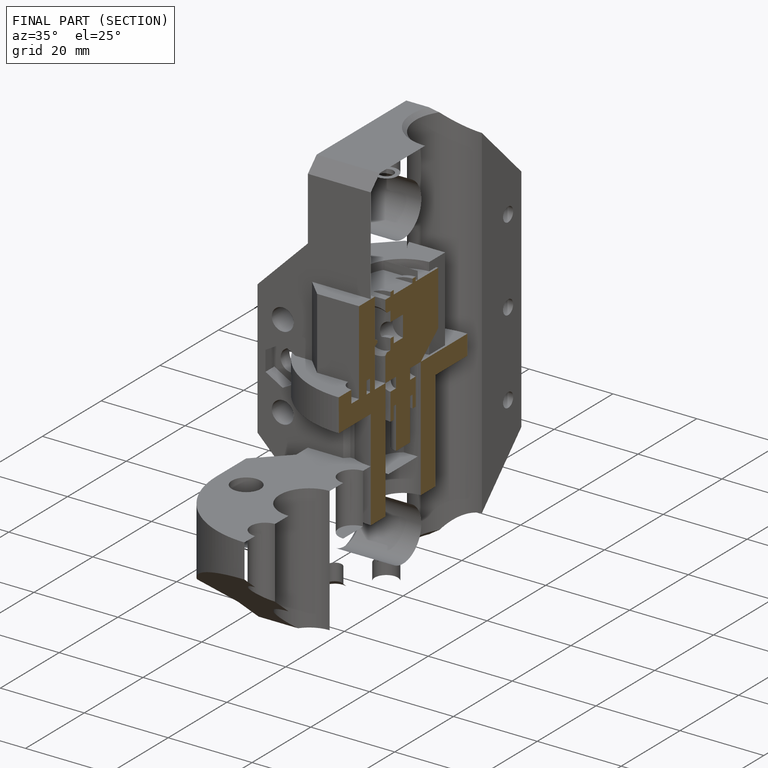
[diagram: finished part — half-section view (interior)]
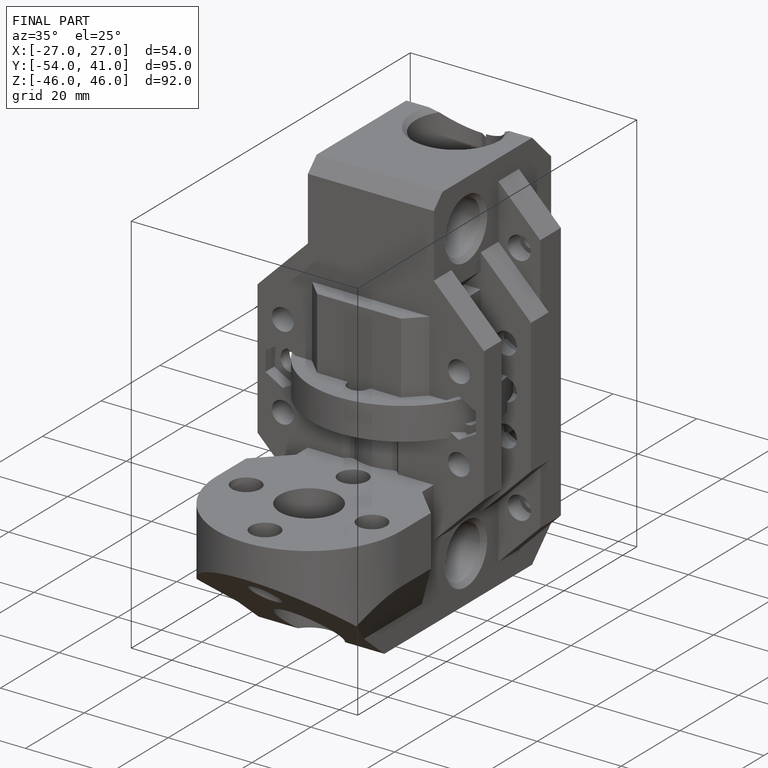
[diagram: finished part — iso view with bounding-box wireframe]
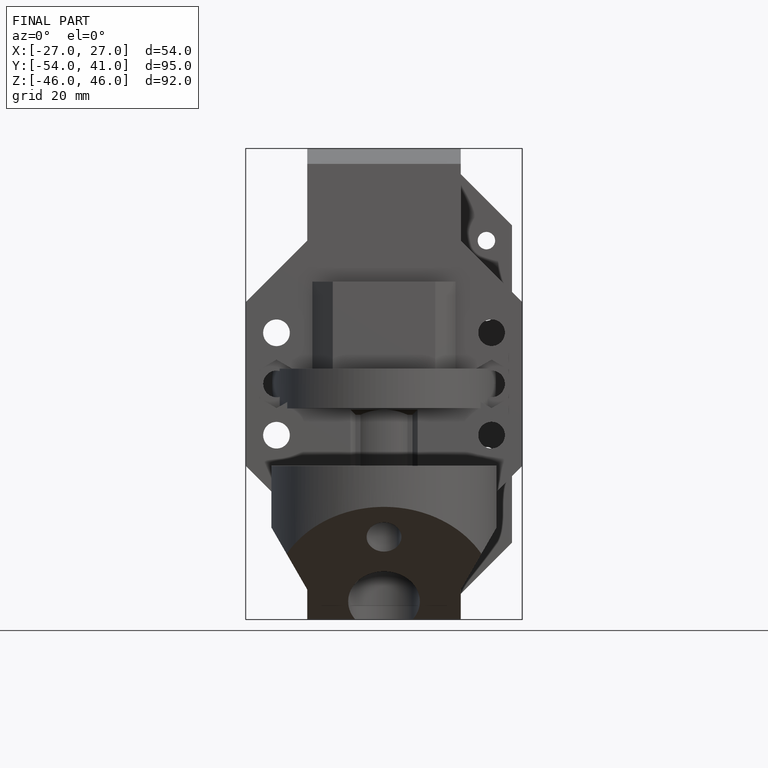
[diagram: finished part — front view with bounding-box wireframe]
